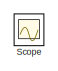
[diagram: root canvas - part 1/2, top left region]
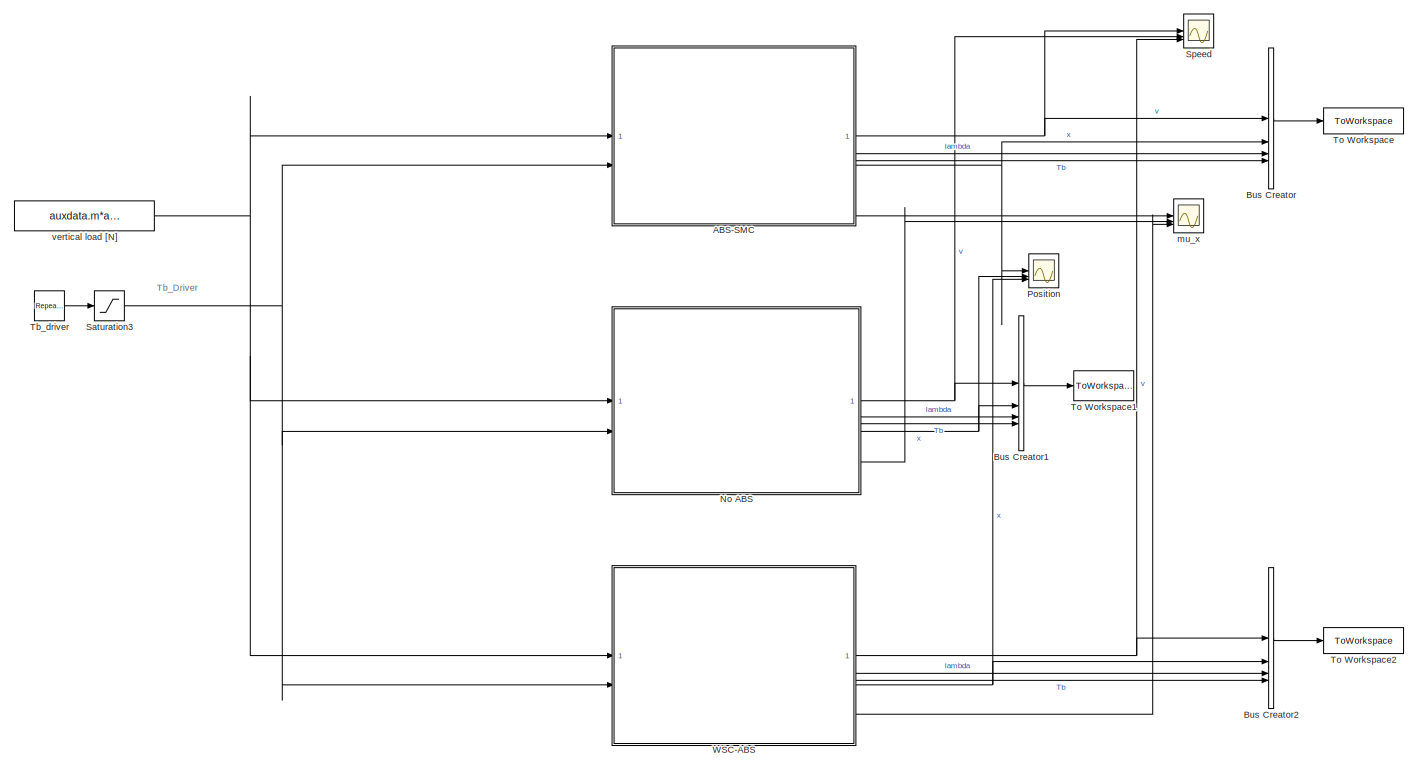
[diagram: root canvas - part 2/2, most of the canvas]
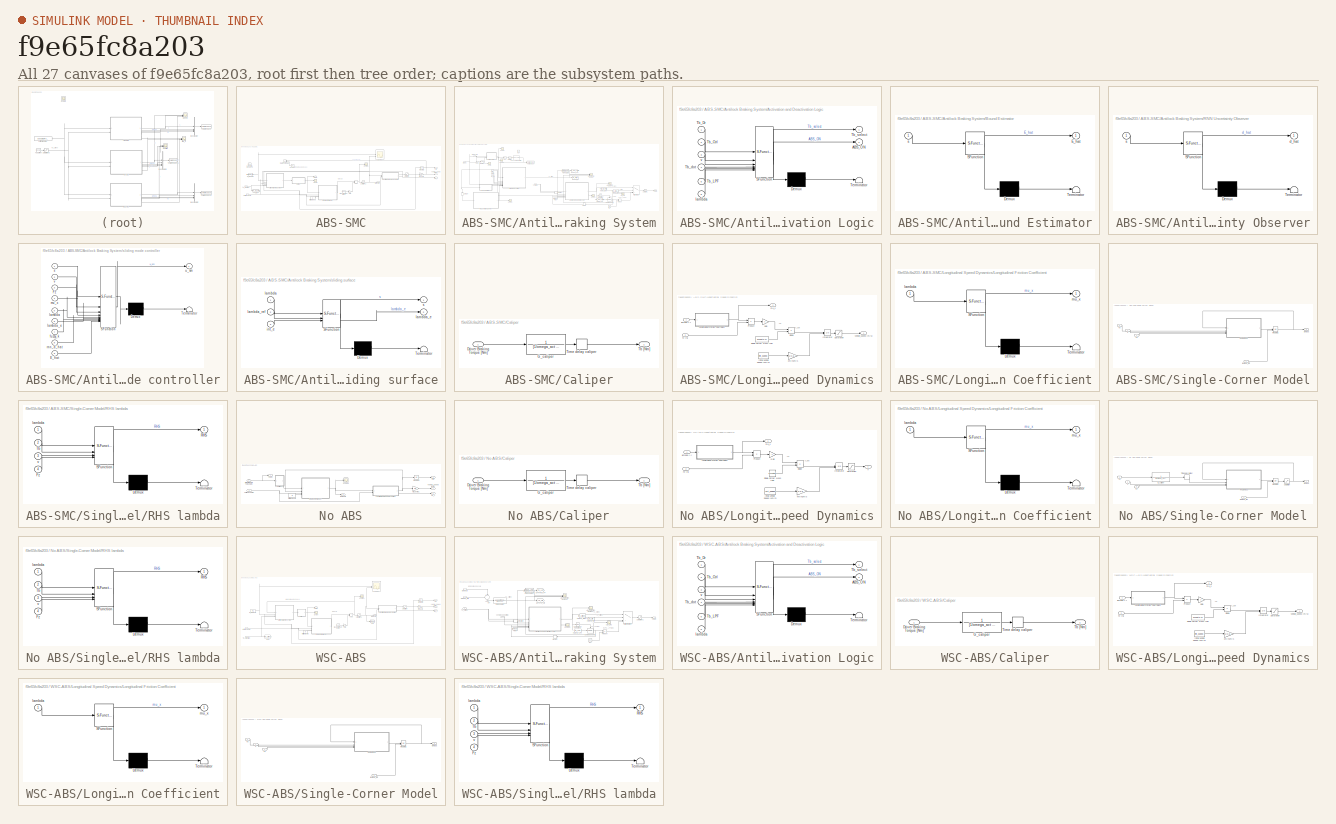
[diagram: thumbnail index - all 27 canvases of the model, root first then tree order]
MODEL slx_f9e65fc8a203
KIND model
CONFIG AbsTol = auto
CONFIG EnableMultiTasking = on
CONFIG FixedStep = auto
CONFIG MaxStep = 1e-3
CONFIG MinStep = auto
CONFIG RelTol = 1e-3
CONFIG SampleTimeConstraint = Unconstrained
CONFIG SolverName = VariableStepAuto
CONFIG StartTime = 0.0
CONFIG StopTime = tf
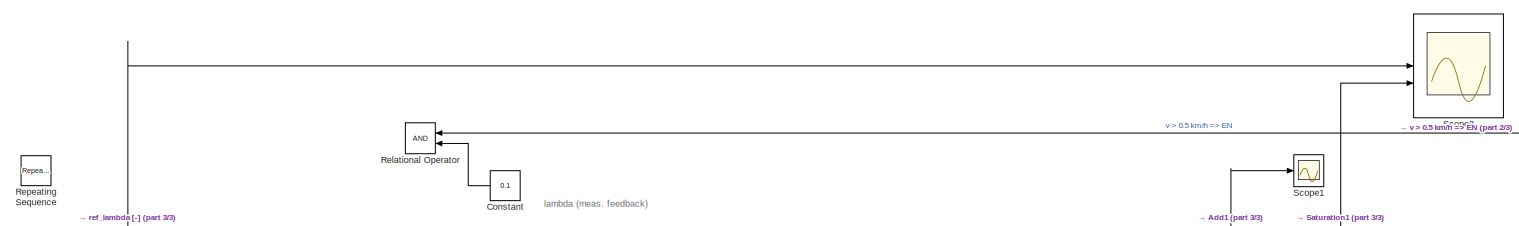
[diagram: ABS-SMC - part 1/3, top center region]
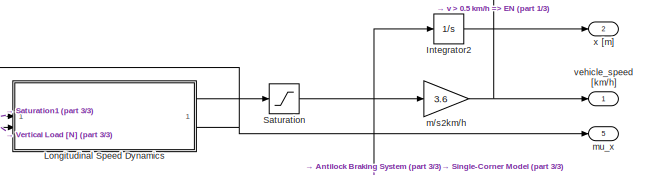
[diagram: ABS-SMC - part 2/3, middle right region]
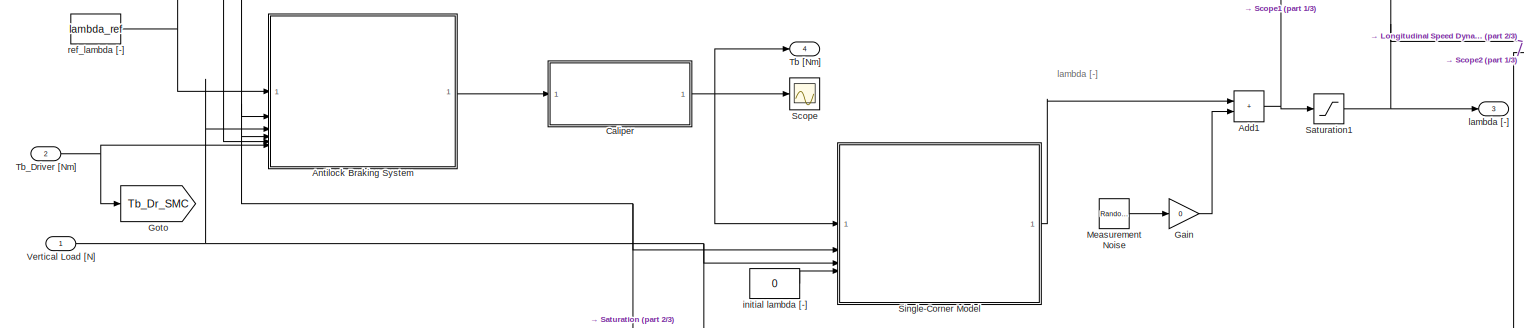
[diagram: ABS-SMC - part 3/3, central region]
BLOCK [SubSystem] ABS-SMC
BLOCK [Sum] ABS-SMC/Add1
  IconShape = rectangular
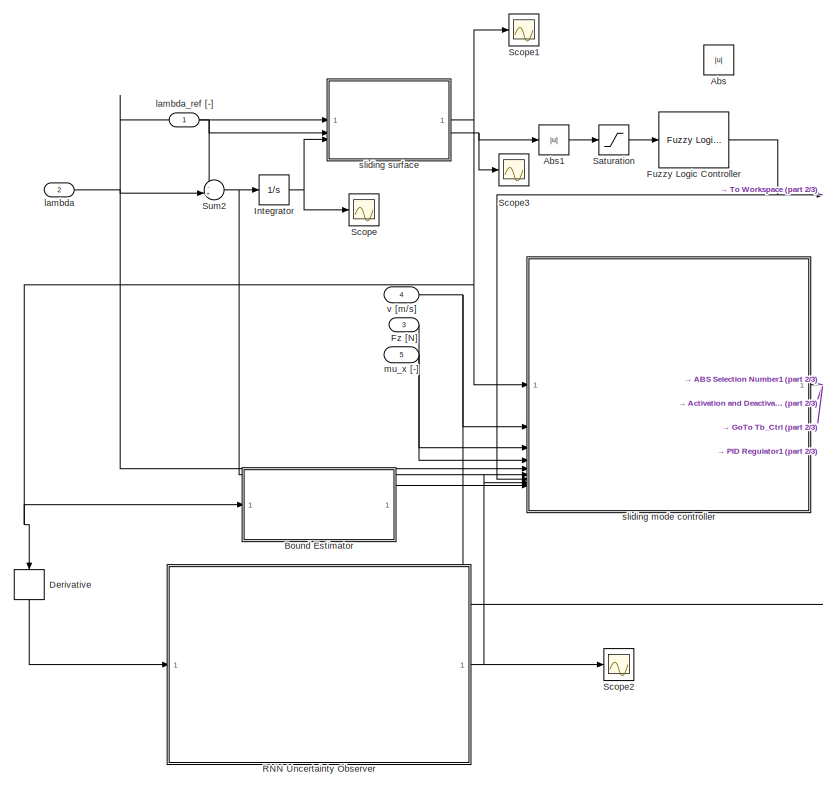
[diagram: ABS-SMC/Antilock Braking System - part 1/3, left side, full height]
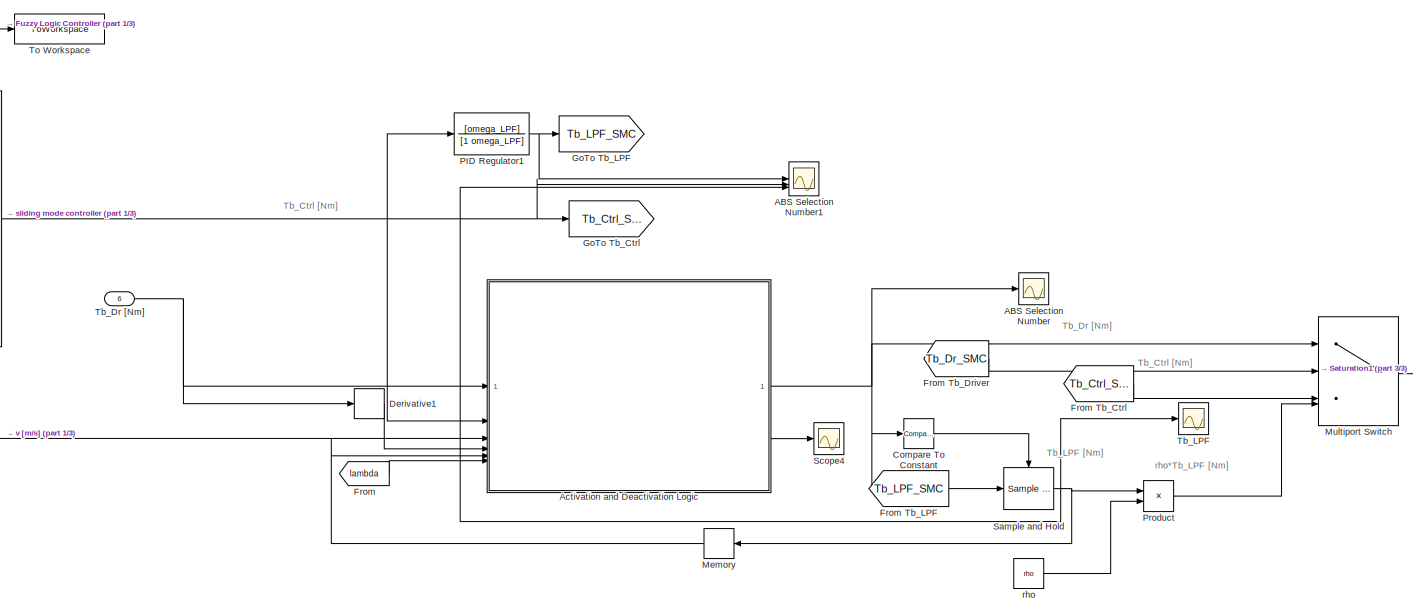
[diagram: ABS-SMC/Antilock Braking System - part 2/3, center side, full height]
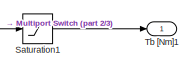
[diagram: ABS-SMC/Antilock Braking System - part 3/3, bottom right region]
BLOCK [SubSystem] ABS-SMC/Antilock Braking System
BLOCK [Scope] ABS-SMC/Antilock Braking System/ABS Selection Number
  Floating = off
  NumInputPorts = 1
  ScopeSpecificationString = Simulink.scopes.TimeScopeBlockCfg('CurrentConfiguration', extmgr.ConfigurationSet(extmgr.Configuration('Core','General UI',true),extmgr.Configuration('Core','Source UI',true),extmgr.Configuration('Sources','WiredSimulink',true,'DataLoggingVariableName','ScopeData1'),extmgr.Configuration('Visuals','Time Domain',true,'SerializedDisplays',{struct('MinYLimReal','0.875','MaxYLimReal','2.125','YLabelRea...<+1440ch>
BLOCK [Scope] ABS-SMC/Antilock Braking System/ABS Selection Number1
  Floating = off
  NumInputPorts = 3
  ScopeSpecificationString = Simulink.scopes.TimeScopeBlockCfg('CurrentConfiguration', extmgr.ConfigurationSet(extmgr.Configuration('Core','General UI',true),extmgr.Configuration('Core','Source UI',true),extmgr.Configuration('Sources','WiredSimulink',true,'DataLoggingVariableName','ScopeData2'),extmgr.Configuration('Visuals','Time Domain',true,'SerializedDisplays',{struct('MinYLimReal','-29869.15738','MaxYLimReal','12518.9920...<+1606ch>
BLOCK [Abs] ABS-SMC/Antilock Braking System/Abs
  Commented = on
  SaturateOnIntegerOverflow = off
BLOCK [Abs] ABS-SMC/Antilock Braking System/Abs1
  SaturateOnIntegerOverflow = off
BLOCK [SubSystem] ABS-SMC/Antilock Braking System/Activation and Deactivation Logic
  ErrorFcn = Stateflow.Translate.translate
  PermitHierarchicalResolution = ExplicitOnly
  SFBlockType = Chart
  TreatAsAtomicUnit = on
BLOCK [Demux] ABS-SMC/Antilock Braking System/Activation and Deactivation Logic/ Demux 
  Outputs = 1
BLOCK [S-Function] ABS-SMC/Antilock Braking System/Activation and Deactivation Logic/ SFunction 
  EnableBusSupport = on
  FunctionName = sf_sfun
  Parameters = Tb_dot_max,hv,lambda1_th,lambda2_th,rho_off,rho_on,v_on,v_stop
  PortCounts = [6 3]
  SFcnIsStateOwnerBlock = off
  SFunctionDeploymentMode = off
  Tag = Stateflow S-Function 12
BLOCK [Terminator] ABS-SMC/Antilock Braking System/Activation and Deactivation Logic/ Terminator 
BLOCK [Outport] ABS-SMC/Antilock Braking System/Activation and Deactivation Logic/ABS_ON
  Port = 2
BLOCK [Inport] ABS-SMC/Antilock Braking System/Activation and Deactivation Logic/Tb_Ctrl
  Port = 2
BLOCK [Inport] ABS-SMC/Antilock Braking System/Activation and Deactivation Logic/Tb_Dr
BLOCK [Inport] ABS-SMC/Antilock Braking System/Activation and Deactivation Logic/Tb_LPF
  Port = 5
BLOCK [Inport] ABS-SMC/Antilock Braking System/Activation and Deactivation Logic/Tb_dot
  Port = 4
BLOCK [Outport] ABS-SMC/Antilock Braking System/Activation and Deactivation Logic/Tb_select
BLOCK [Inport] ABS-SMC/Antilock Braking System/Activation and Deactivation Logic/lambda
  Port = 6
BLOCK [Inport] ABS-SMC/Antilock Braking System/Activation and Deactivation Logic/v
  Port = 3
BLOCK [SubSystem] ABS-SMC/Antilock Braking System/Bound Estimator
  ErrorFcn = Stateflow.Translate.translate
  PermitHierarchicalResolution = ExplicitOnly
  SFBlockType = MATLAB Function
  TreatAsAtomicUnit = on
BLOCK [Demux] ABS-SMC/Antilock Braking System/Bound Estimator/ Demux 
  Outputs = 1
BLOCK [S-Function] ABS-SMC/Antilock Braking System/Bound Estimator/ SFunction 
  EnableBusSupport = on
  FunctionName = sf_sfun
  Parameters = dt,rnn
  PortCounts = [1 2]
  SFcnIsStateOwnerBlock = off
  SFunctionDeploymentMode = off
  Tag = Stateflow S-Function 10
BLOCK [Terminator] ABS-SMC/Antilock Braking System/Bound Estimator/ Terminator 
BLOCK [Outport] ABS-SMC/Antilock Braking System/Bound Estimator/E_hat
BLOCK [Inport] ABS-SMC/Antilock Braking System/Bound Estimator/s
BLOCK [Reference] ABS-SMC/Antilock Braking System/Compare To Constant  REF=simulink/Logic and Bit
Operations/Compare
To Constant
  SourceBlock = simulink/Logic and Bit\nOperations/Compare\nTo Constant
  SourceType = Compare To Constant
BLOCK [Derivative] ABS-SMC/Antilock Braking System/Derivative
  NameLocation = left
BLOCK [Derivative] ABS-SMC/Antilock Braking System/Derivative1
BLOCK [From] ABS-SMC/Antilock Braking System/From
  GotoTag = lambda
  TagVisibility = global
BLOCK [From] ABS-SMC/Antilock Braking System/From Tb_Ctrl
  GotoTag = Tb_Ctrl_SMC
  TagVisibility = global
BLOCK [From] ABS-SMC/Antilock Braking System/From Tb_Driver
  GotoTag = Tb_Dr_SMC
  TagVisibility = global
BLOCK [From] ABS-SMC/Antilock Braking System/From Tb_LPF
  GotoTag = Tb_LPF_SMC
  TagVisibility = global
BLOCK [Reference] ABS-SMC/Antilock Braking System/Fuzzy Logic Controller  REF=fuzblock/Fuzzy Logic   (lib defined in mdl_858b3b3e7478)
Controller
  SourceBlock = fuzblock/Fuzzy Logic \nController
  SourceType = Fuzzy Inference System
BLOCK [Inport] ABS-SMC/Antilock Braking System/Fz [N]
  Port = 3
BLOCK [Goto] ABS-SMC/Antilock Braking System/GoTo Tb_Ctrl
  GotoTag = Tb_Ctrl_SMC
  TagVisibility = global
BLOCK [Goto] ABS-SMC/Antilock Braking System/GoTo Tb_LPF
  GotoTag = Tb_LPF_SMC
  TagVisibility = global
BLOCK [Integrator] ABS-SMC/Antilock Braking System/Integrator
BLOCK [Memory] ABS-SMC/Antilock Braking System/Memory
  NameLocation = top
BLOCK [MultiPortSwitch] ABS-SMC/Antilock Braking System/Multiport Switch
  InputSameDT = off
  SaturateOnIntegerOverflow = off
BLOCK [TransferFcn] ABS-SMC/Antilock Braking System/PID Regulator1
  Denominator = [1 omega_LPF]
  Numerator = [omega_LPF]
BLOCK [Product] ABS-SMC/Antilock Braking System/Product
BLOCK [SubSystem] ABS-SMC/Antilock Braking System/RNN Uncertainty Observer
  ErrorFcn = Stateflow.Translate.translate
  PermitHierarchicalResolution = ExplicitOnly
  SFBlockType = MATLAB Function
  TreatAsAtomicUnit = on
BLOCK [Demux] ABS-SMC/Antilock Braking System/RNN Uncertainty Observer/ Demux 
  Outputs = 1
BLOCK [S-Function] ABS-SMC/Antilock Braking System/RNN Uncertainty Observer/ SFunction 
  EnableBusSupport = on
  FunctionName = sf_sfun
  Parameters = dt,rnn
  PortCounts = [1 2]
  SFcnIsStateOwnerBlock = off
  SFunctionDeploymentMode = off
  Tag = Stateflow S-Function 11
BLOCK [Terminator] ABS-SMC/Antilock Braking System/RNN Uncertainty Observer/ Terminator 
BLOCK [Outport] ABS-SMC/Antilock Braking System/RNN Uncertainty Observer/d_hat
BLOCK [Inport] ABS-SMC/Antilock Braking System/RNN Uncertainty Observer/s
BLOCK [Reference] ABS-SMC/Antilock Braking System/Sample and Hold  REF=dspsigops/Sample
and Hold
  SourceBlock = dspsigops/Sample\nand Hold
  SourceType = Sample and Hold
BLOCK [Saturate] ABS-SMC/Antilock Braking System/Saturation
  LinearizeAsGain = off
  LowerLimit = 0
  UpperLimit = 1
  ZeroCross = off
BLOCK [Saturate] ABS-SMC/Antilock Braking System/Saturation1
  LowerLimit = 0
  UpperLimit = Tb_max
BLOCK [Scope] ABS-SMC/Antilock Braking System/Scope
  Floating = off
  NumInputPorts = 1
  ScopeSpecificationString = Simulink.scopes.TimeScopeBlockCfg('CurrentConfiguration', extmgr.ConfigurationSet(extmgr.Configuration('Core','General UI',true),extmgr.Configuration('Core','Source UI',true),extmgr.Configuration('Sources','WiredSimulink',true,'DataLoggingVariableName','ScopeData1'),extmgr.Configuration('Visuals','Time Domain',true,'SerializedDisplays',{struct('MinYLimReal','-0.14483','MaxYLimReal','0.99061','YLab...<+1504ch>
BLOCK [Scope] ABS-SMC/Antilock Braking System/Scope1
  Floating = off
  NumInputPorts = 1
  ScopeSpecificationString = Simulink.scopes.TimeScopeBlockCfg('CurrentConfiguration', extmgr.ConfigurationSet(extmgr.Configuration('Core','General UI',true),extmgr.Configuration('Core','Source UI',true),extmgr.Configuration('Sources','WiredSimulink',true,'DataLoggingVariableName','ScopeData1'),extmgr.Configuration('Visuals','Time Domain',true,'SerializedDisplays',{struct('MinYLimReal','-11.77973','MaxYLimReal','99.01326','YL...<+1564ch>
BLOCK [Scope] ABS-SMC/Antilock Braking System/Scope2
  Floating = off
  NumInputPorts = 1
  ScopeSpecificationString = Simulink.scopes.TimeScopeBlockCfg('CurrentConfiguration', extmgr.ConfigurationSet(extmgr.Configuration('Core','General UI',true),extmgr.Configuration('Core','Source UI',true),extmgr.Configuration('Sources','WiredSimulink',true,'DataLoggingVariableName','ScopeData1'),extmgr.Configuration('Visuals','Time Domain',true,'SerializedDisplays',{struct('MinYLimReal','-0.6695','MaxYLimReal','0.07812','YLabe...<+1514ch>
BLOCK [Scope] ABS-SMC/Antilock Braking System/Scope3
  Floating = off
  NumInputPorts = 1
  ScopeSpecificationString = Simulink.scopes.TimeScopeBlockCfg('CurrentConfiguration', extmgr.ConfigurationSet(extmgr.Configuration('Core','General UI',true),extmgr.Configuration('Core','Source UI',true),extmgr.Configuration('Sources','WiredSimulink',true,'DataLoggingVariableName','ScopeData1'),extmgr.Configuration('Visuals','Time Domain',true,'SerializedDisplays',{struct('MinYLimReal','-0.19448','MaxYLimReal','0.75034','YLab...<+1498ch>
BLOCK [Scope] ABS-SMC/Antilock Braking System/Scope4
  Floating = off
  NumInputPorts = 1
  ScopeSpecificationString = Simulink.scopes.TimeScopeBlockCfg('CurrentConfiguration', extmgr.ConfigurationSet(extmgr.Configuration('Core','General UI',true),extmgr.Configuration('Core','Source UI',true),extmgr.Configuration('Sources','WiredSimulink',true,'DataLoggingVariableName','ScopeData3'),extmgr.Configuration('Visuals','Time Domain',true,'SerializedDisplays',{struct('MinYLimReal','-0.125','MaxYLimReal','1.125','YLabelRe...<+1384ch>
BLOCK [Sum] ABS-SMC/Antilock Braking System/Sum2
  Inputs = -+|
BLOCK [Outport] ABS-SMC/Antilock Braking System/Tb [Nm]1
BLOCK [Inport] ABS-SMC/Antilock Braking System/Tb_Dr [Nm]
  Port = 6
BLOCK [Scope] ABS-SMC/Antilock Braking System/Tb_LPF
  Floating = off
  NumInputPorts = 1
  ScopeSpecificationString = Simulink.scopes.TimeScopeBlockCfg('CurrentConfiguration', extmgr.ConfigurationSet(extmgr.Configuration('Core','General UI',true),extmgr.Configuration('Core','Source UI',true),extmgr.Configuration('Sources','WiredSimulink',true,'DataLoggingVariableName','ScopeData4'),extmgr.Configuration('Visuals','Time Domain',true,'SerializedDisplays',{struct('MinYLimReal','-1.00000','MaxYLimReal','1.00000','YLab...<+1428ch>
BLOCK [ToWorkspace] ABS-SMC/Antilock Braking System/To Workspace
  FixptAsFi = on
  MaxDataPoints = inf
  SampleTime = -1
  SaveFormat = Timeseries
  VariableName = simout
BLOCK [Inport] ABS-SMC/Antilock Braking System/lambda
  Port = 2
BLOCK [Inport] ABS-SMC/Antilock Braking System/lambda_ref [-]
  NameLocation = top
BLOCK [Inport] ABS-SMC/Antilock Braking System/mu_x [-]
  Port = 5
BLOCK [Constant] ABS-SMC/Antilock Braking System/rho
  Value = rho
BLOCK [SubSystem] ABS-SMC/Antilock Braking System/sliding mode controller
  ErrorFcn = Stateflow.Translate.translate
  PermitHierarchicalResolution = ExplicitOnly
  SFBlockType = MATLAB Function
  TreatAsAtomicUnit = on
BLOCK [Demux] ABS-SMC/Antilock Braking System/sliding mode controller/ Demux 
  Outputs = 1
BLOCK [S-Function] ABS-SMC/Antilock Braking System/sliding mode controller/ SFunction 
  EnableBusSupport = on
  FunctionName = sf_sfun
  Parameters = auxdata,smc
  PortCounts = [9 2]
  SFcnIsStateOwnerBlock = off
  SFunctionDeploymentMode = off
  Tag = Stateflow S-Function 9
BLOCK [Terminator] ABS-SMC/Antilock Braking System/sliding mode controller/ Terminator 
BLOCK [Inport] ABS-SMC/Antilock Braking System/sliding mode controller/E_hat
  Port = 9
BLOCK [Inport] ABS-SMC/Antilock Braking System/sliding mode controller/Fz
  Port = 3
BLOCK [Inport] ABS-SMC/Antilock Braking System/sliding mode controller/fuzzy_k
  Port = 7
BLOCK [Inport] ABS-SMC/Antilock Braking System/sliding mode controller/lambda
  Port = 5
BLOCK [Inport] ABS-SMC/Antilock Braking System/sliding mode controller/lambda_e
  Port = 6
BLOCK [Inport] ABS-SMC/Antilock Braking System/sliding mode controller/mu_x
  Port = 4
BLOCK [Inport] ABS-SMC/Antilock Braking System/sliding mode controller/rnn_d_hat
  Port = 8
BLOCK [Inport] ABS-SMC/Antilock Braking System/sliding mode controller/s
BLOCK [Outport] ABS-SMC/Antilock Braking System/sliding mode controller/u_sm
BLOCK [Inport] ABS-SMC/Antilock Braking System/sliding mode controller/v
  Port = 2
BLOCK [SubSystem] ABS-SMC/Antilock Braking System/sliding surface
  ErrorFcn = Stateflow.Translate.translate
  PermitHierarchicalResolution = ExplicitOnly
  SFBlockType = MATLAB Function
  TreatAsAtomicUnit = on
BLOCK [Demux] ABS-SMC/Antilock Braking System/sliding surface/ Demux 
  Outputs = 1
BLOCK [S-Function] ABS-SMC/Antilock Braking System/sliding surface/ SFunction 
  EnableBusSupport = on
  FunctionName = sf_sfun
  Parameters = smc
  PortCounts = [3 3]
  SFcnIsStateOwnerBlock = off
  SFunctionDeploymentMode = off
  Tag = Stateflow S-Function 6
BLOCK [Terminator] ABS-SMC/Antilock Braking System/sliding surface/ Terminator 
BLOCK [Inport] ABS-SMC/Antilock Braking System/sliding surface/int_e
  Port = 3
BLOCK [Inport] ABS-SMC/Antilock Braking System/sliding surface/lambda
BLOCK [Outport] ABS-SMC/Antilock Braking System/sliding surface/lambda_e
  Port = 2
BLOCK [Inport] ABS-SMC/Antilock Braking System/sliding surface/lambda_ref
  Port = 2
BLOCK [Outport] ABS-SMC/Antilock Braking System/sliding surface/s
BLOCK [Inport] ABS-SMC/Antilock Braking System/v [m//s]
  NameLocation = top
  Port = 4
BLOCK [SubSystem] ABS-SMC/Caliper
BLOCK [Inport] ABS-SMC/Caliper/Driver Braking Torque [Nm]
BLOCK [TransferFcn] ABS-SMC/Caliper/G_caliper
  Denominator = [1/omega_act 1]
  Numerator = 1
BLOCK [Outport] ABS-SMC/Caliper/Tb [Nm]
BLOCK [TransportDelay] ABS-SMC/Caliper/Time delay caliper
  DelayTime = tau_delay
BLOCK [Constant] ABS-SMC/Constant
  Value = 0.1
BLOCK [Gain] ABS-SMC/Gain
  Gain = 0
BLOCK [Goto] ABS-SMC/Goto
  GotoTag = Tb_Dr_SMC
  TagVisibility = global
BLOCK [Integrator] ABS-SMC/Integrator2
BLOCK [SubSystem] ABS-SMC/Longitudinal Speed Dynamics
BLOCK [Product] ABS-SMC/Longitudinal Speed Dynamics/Divide
  Inputs = */
BLOCK [Inport] ABS-SMC/Longitudinal Speed Dynamics/Fz [N]
  Port = 2
BLOCK [Gain] ABS-SMC/Longitudinal Speed Dynamics/Gain
  Gain = -1
BLOCK [Constant] ABS-SMC/Longitudinal Speed Dynamics/Initial Vehicle Speed [km//h]
  Value = init_speed
BLOCK [Integrator] ABS-SMC/Longitudinal Speed Dynamics/Integrator
  InitialConditionSource = external
BLOCK [SubSystem] ABS-SMC/Longitudinal Speed Dynamics/Longitudinal Friction Coefficient
  ErrorFcn = Stateflow.Translate.translate
  PermitHierarchicalResolution = ExplicitOnly
  SFBlockType = MATLAB Function
  TreatAsAtomicUnit = on
BLOCK [Demux] ABS-SMC/Longitudinal Speed Dynamics/Longitudinal Friction Coefficient/ Demux 
  Outputs = 1
BLOCK [S-Function] ABS-SMC/Longitudinal Speed Dynamics/Longitudinal Friction Coefficient/ SFunction 
  EnableBusSupport = on
  FunctionName = sf_sfun
  Parameters = auxdata
  PortCounts = [1 2]
  SFcnIsStateOwnerBlock = off
  SFunctionDeploymentMode = off
  Tag = Stateflow S-Function 2
BLOCK [Terminator] ABS-SMC/Longitudinal Speed Dynamics/Longitudinal Friction Coefficient/ Terminator 
BLOCK [Inport] ABS-SMC/Longitudinal Speed Dynamics/Longitudinal Friction Coefficient/lambda
BLOCK [Outport] ABS-SMC/Longitudinal Speed Dynamics/Longitudinal Friction Coefficient/mu_x
BLOCK [Product] ABS-SMC/Longitudinal Speed Dynamics/Product
BLOCK [Saturate] ABS-SMC/Longitudinal Speed Dynamics/Saturation
  LowerLimit = 0
  UpperLimit = 100
BLOCK [Constant] ABS-SMC/Longitudinal Speed Dynamics/Single-Corner Mass [Kg]
  Value = auxdata.m
BLOCK [Gain] ABS-SMC/Longitudinal Speed Dynamics/km//h2m//s
  Gain = 1/3.6
BLOCK [Inport] ABS-SMC/Longitudinal Speed Dynamics/lambda [-]
BLOCK [Outport] ABS-SMC/Longitudinal Speed Dynamics/mu_x
  Port = 2
BLOCK [Outport] ABS-SMC/Longitudinal Speed Dynamics/vehicle_speed [m//s]
BLOCK [RandomNumber] ABS-SMC/Measurement Noise
  SampleTime = 0.001
  Variance = 2e-5
BLOCK [RelationalOperator] ABS-SMC/Relational Operator
  Commented = on
  InputSameDT = off
  OutDataTypeStr = boolean
  RndMeth = Simplest
BLOCK [Reference] ABS-SMC/Repeating Sequence  REF=simulink/Sources/Repeating
Sequence
  Commented = on
  SourceBlock = simulink/Sources/Repeating\nSequence
  SourceType = Repeating table
BLOCK [Saturate] ABS-SMC/Saturation
  LowerLimit = 1e-3
  UpperLimit = 100
BLOCK [Saturate] ABS-SMC/Saturation1
  LowerLimit = 0
  UpperLimit = 1
BLOCK [Scope] ABS-SMC/Scope
  Floating = off
  NumInputPorts = 1
  ScopeSpecificationString = Simulink.scopes.TimeScopeBlockCfg('CurrentConfiguration', extmgr.ConfigurationSet(extmgr.Configuration('Core','General UI',true),extmgr.Configuration('Core','Source UI',true),extmgr.Configuration('Sources','WiredSimulink',true,'DataLoggingVariableName','ScopeData1'),extmgr.Configuration('Visuals','Time Domain',true,'SerializedDisplays',{struct('MinYLimReal','-181.14068','MaxYLimReal','1630.2661','...<+1565ch>
BLOCK [Scope] ABS-SMC/Scope1
  Floating = off
  NumInputPorts = 1
  ScopeSpecificationString = Simulink.scopes.TimeScopeBlockCfg('CurrentConfiguration', extmgr.ConfigurationSet(extmgr.Configuration('Core','General UI',true),extmgr.Configuration('Core','Source UI',true),extmgr.Configuration('Sources','WiredSimulink',true,'DataLoggingVariableName','ScopeData1'),extmgr.Configuration('Visuals','Time Domain',true,'SerializedDisplays',{struct('MinYLimReal','-0.12494','MaxYLimReal','1.12447','YLab...<+1522ch>
BLOCK [Scope] ABS-SMC/Scope2
  Floating = off
  NumInputPorts = 2
  ScopeSpecificationString = Simulink.scopes.TimeScopeBlockCfg('CurrentConfiguration', extmgr.ConfigurationSet(extmgr.Configuration('Core','General UI',true),extmgr.Configuration('Core','Source UI',true),extmgr.Configuration('Sources','WiredSimulink',true,'DataLoggingVariableName','ScopeData2'),extmgr.Configuration('Visuals','Time Domain',true,'SerializedDisplays',{struct('MinYLimReal','-0.11932','MaxYLimReal','1.07386','YLab...<+1549ch>
BLOCK [SubSystem] ABS-SMC/Single-Corner Model
  ShowPortLabels = none
BLOCK [Inport] ABS-SMC/Single-Corner Model/Fz
  Port = 3
BLOCK [Integrator] ABS-SMC/Single-Corner Model/Integrator1
  InitialConditionSource = external
  LimitOutput = on
  LowerSaturationLimit = 0
  UpperSaturationLimit = 1
BLOCK [SubSystem] ABS-SMC/Single-Corner Model/RHS lambda
  ErrorFcn = Stateflow.Translate.translate
  PermitHierarchicalResolution = ExplicitOnly
  SFBlockType = MATLAB Function
  TreatAsAtomicUnit = on
BLOCK [Demux] ABS-SMC/Single-Corner Model/RHS lambda/ Demux 
  Outputs = 1
BLOCK [S-Function] ABS-SMC/Single-Corner Model/RHS lambda/ SFunction 
  EnableBusSupport = on
  FunctionName = sf_sfun
  Parameters = auxdata
  PortCounts = [4 2]
  SFcnIsStateOwnerBlock = off
  SFunctionDeploymentMode = off
  Tag = Stateflow S-Function 7
BLOCK [Terminator] ABS-SMC/Single-Corner Model/RHS lambda/ Terminator 
BLOCK [Inport] ABS-SMC/Single-Corner Model/RHS lambda/Fz
  Port = 4
BLOCK [Outport] ABS-SMC/Single-Corner Model/RHS lambda/RHS
BLOCK [Inport] ABS-SMC/Single-Corner Model/RHS lambda/Tb
  Port = 2
BLOCK [Inport] ABS-SMC/Single-Corner Model/RHS lambda/lambda
BLOCK [Inport] ABS-SMC/Single-Corner Model/RHS lambda/v
  Port = 3
BLOCK [Inport] ABS-SMC/Single-Corner Model/Tb
BLOCK [Outport] ABS-SMC/Single-Corner Model/lambda
BLOCK [Inport] ABS-SMC/Single-Corner Model/lambda_init
  Port = 4
BLOCK [Inport] ABS-SMC/Single-Corner Model/v
  Port = 2
BLOCK [Outport] ABS-SMC/Tb [Nm]
  Port = 4
BLOCK [Inport] ABS-SMC/Tb_Driver [Nm]
  Port = 2
BLOCK [Inport] ABS-SMC/Vertical Load [N]
BLOCK [Constant] ABS-SMC/initial lambda [-]
  Value = 0
BLOCK [Outport] ABS-SMC/lambda [-]
  Port = 3
BLOCK [Gain] ABS-SMC/m//s2km//h
  Gain = 3.6
BLOCK [Outport] ABS-SMC/mu_x
  Port = 5
BLOCK [Constant] ABS-SMC/ref_lambda [-]
  Value = lambda_ref
BLOCK [Outport] ABS-SMC/vehicle_speed [km//h]
BLOCK [Outport] ABS-SMC/x [m]
  Port = 2
BLOCK [BusCreator] Bus Creator
  DisplayOption = bar
  InheritFromInputs = on
  Inputs = 4
BLOCK [BusCreator] Bus Creator1
  DisplayOption = bar
  InheritFromInputs = on
  Inputs = 4
BLOCK [BusCreator] Bus Creator2
  DisplayOption = bar
  InheritFromInputs = on
  Inputs = 4
BLOCK [SubSystem] No ABS
BLOCK [Outport] No ABS/ mu_x
  Port = 5
BLOCK [Outport] No ABS/ vehicle_speed [km//h]
BLOCK [SubSystem] No ABS/Caliper
BLOCK [Inport] No ABS/Caliper/Driver Braking Torque [Nm]
BLOCK [TransferFcn] No ABS/Caliper/G_caliper
  Denominator = [1/omega_act 1]
  Numerator = 1
BLOCK [Outport] No ABS/Caliper/Tb [Nm]
BLOCK [TransportDelay] No ABS/Caliper/Time delay caliper
  DelayTime = tau_delay
BLOCK [Inport] No ABS/Driver Braking Torque [Nm]
  Port = 2
BLOCK [Integrator] No ABS/Integrator3
BLOCK [SubSystem] No ABS/Longitudinal Speed Dynamics
BLOCK [Product] No ABS/Longitudinal Speed Dynamics/Divide
  Inputs = */
BLOCK [Inport] No ABS/Longitudinal Speed Dynamics/Fz [N]
  Port = 2
BLOCK [Gain] No ABS/Longitudinal Speed Dynamics/Gain
  Gain = -1
BLOCK [Constant] No ABS/Longitudinal Speed Dynamics/Initial Vehicle Speed [km//h]
  Value = init_speed
BLOCK [Integrator] No ABS/Longitudinal Speed Dynamics/Integrator
  InitialConditionSource = external
BLOCK [SubSystem] No ABS/Longitudinal Speed Dynamics/Longitudinal Friction Coefficient
  ErrorFcn = Stateflow.Translate.translate
  PermitHierarchicalResolution = ExplicitOnly
  SFBlockType = MATLAB Function
  TreatAsAtomicUnit = on
BLOCK [Demux] No ABS/Longitudinal Speed Dynamics/Longitudinal Friction Coefficient/ Demux 
  Outputs = 1
BLOCK [S-Function] No ABS/Longitudinal Speed Dynamics/Longitudinal Friction Coefficient/ SFunction 
  EnableBusSupport = on
  FunctionName = sf_sfun
  Parameters = auxdata
  PortCounts = [1 2]
  SFcnIsStateOwnerBlock = off
  SFunctionDeploymentMode = off
  Tag = Stateflow S-Function 5
BLOCK [Terminator] No ABS/Longitudinal Speed Dynamics/Longitudinal Friction Coefficient/ Terminator 
BLOCK [Inport] No ABS/Longitudinal Speed Dynamics/Longitudinal Friction Coefficient/lambda
BLOCK [Outport] No ABS/Longitudinal Speed Dynamics/Longitudinal Friction Coefficient/mu_x
BLOCK [Product] No ABS/Longitudinal Speed Dynamics/Product
BLOCK [Saturate] No ABS/Longitudinal Speed Dynamics/Saturation
  LowerLimit = 1e-3
  UpperLimit = 100
BLOCK [Constant] No ABS/Longitudinal Speed Dynamics/Single-Corner Mass [Kg]
  Value = auxdata.m
BLOCK [Gain] No ABS/Longitudinal Speed Dynamics/km//h2m//s
  Gain = 1/3.6
BLOCK [Inport] No ABS/Longitudinal Speed Dynamics/lambda [-]
BLOCK [Outport] No ABS/Longitudinal Speed Dynamics/mu_x
  Port = 2
BLOCK [Outport] No ABS/Longitudinal Speed Dynamics/v
BLOCK [Scope] No ABS/Scope3
  Floating = off
  NumInputPorts = 1
  ScopeSpecificationString = Simulink.scopes.TimeScopeBlockCfg('CurrentConfiguration', extmgr.ConfigurationSet(extmgr.Configuration('Core','General UI',true),extmgr.Configuration('Core','Source UI',true),extmgr.Configuration('Sources','WiredSimulink',true,'DataLoggingVariableName','ScopeData5'),extmgr.Configuration('Visuals','Time Domain',true,'SerializedDisplays',{struct('MinYLimReal','-0.12375','MaxYLimReal','1.11375','YLab...<+1378ch>
BLOCK [SubSystem] No ABS/Single-Corner Model
  ShowPortLabels = none
BLOCK [Inport] No ABS/Single-Corner Model/Fz
  Port = 3
BLOCK [TransferFcn] No ABS/Single-Corner Model/G_caliper
  Denominator = [1/omega_act 1]
  Numerator = 1
BLOCK [Integrator] No ABS/Single-Corner Model/Integrator1
  InitialConditionSource = external
BLOCK [SubSystem] No ABS/Single-Corner Model/RHS lambda
  ErrorFcn = Stateflow.Translate.translate
  PermitHierarchicalResolution = ExplicitOnly
  SFBlockType = MATLAB Function
  TreatAsAtomicUnit = on
BLOCK [Demux] No ABS/Single-Corner Model/RHS lambda/ Demux 
  Outputs = 1
BLOCK [S-Function] No ABS/Single-Corner Model/RHS lambda/ SFunction 
  EnableBusSupport = on
  FunctionName = sf_sfun
  Parameters = auxdata
  PortCounts = [4 2]
  SFcnIsStateOwnerBlock = off
  SFunctionDeploymentMode = off
  Tag = Stateflow S-Function 3
BLOCK [Terminator] No ABS/Single-Corner Model/RHS lambda/ Terminator 
BLOCK [Inport] No ABS/Single-Corner Model/RHS lambda/Fz
  Port = 4
BLOCK [Outport] No ABS/Single-Corner Model/RHS lambda/RHS
BLOCK [Inport] No ABS/Single-Corner Model/RHS lambda/Tb
  Port = 2
BLOCK [Inport] No ABS/Single-Corner Model/RHS lambda/lambda
BLOCK [Inport] No ABS/Single-Corner Model/RHS lambda/v
  Port = 3
BLOCK [Saturate] No ABS/Single-Corner Model/Saturation
  LowerLimit = 0
  UpperLimit = 0.99
BLOCK [Inport] No ABS/Single-Corner Model/Tb
BLOCK [TransportDelay] No ABS/Single-Corner Model/Time delay caliper
  DelayTime = tau_delay
BLOCK [Outport] No ABS/Single-Corner Model/lambda
BLOCK [Inport] No ABS/Single-Corner Model/lambda_init
  Port = 4
BLOCK [Inport] No ABS/Single-Corner Model/v
  Port = 2
BLOCK [Outport] No ABS/Tb [Nm]
  Port = 4
BLOCK [Inport] No ABS/Vertical Load [N]
  NameLocation = top
BLOCK [Constant] No ABS/initial lambda [-]
  Value = 0
BLOCK [Outport] No ABS/lambda [-]
  Port = 3
BLOCK [Gain] No ABS/m//s2km//h1
  Gain = 3.6
BLOCK [Outport] No ABS/x [m]
  Port = 2
BLOCK [Scope] Position
  Floating = off
  NumInputPorts = 3
  ScopeSpecificationString = Simulink.scopes.TimeScopeBlockCfg('CurrentConfiguration', extmgr.ConfigurationSet(extmgr.Configuration('Core','General UI',true),extmgr.Configuration('Core','Source UI',true),extmgr.Configuration('Sources','WiredSimulink',true,'DataLoggingVariableName','ScopeData6'),extmgr.Configuration('Visuals','Time Domain',true,'SerializedDisplays',{struct('MinYLimReal','-7.86203','MaxYLimReal','70.75829','YLa...<+1443ch>
BLOCK [Saturate] Saturation3
  LowerLimit = 0
  UpperLimit = Tb_max
BLOCK [Scope] Scope
  Floating = off
  IOType = viewer
  NumInputPorts = 1
  ScopeSpecificationString = Simulink.scopes.TimeScopeBlockCfg('CurrentConfiguration', extmgr.ConfigurationSet(extmgr.Configuration('Core','General UI',true),extmgr.Configuration('Core','Source UI',true),extmgr.Configuration('Sources','WiredSimulink',true),extmgr.Configuration('Visuals','Time Domain',true,'SerializedDisplays',{struct('MinYLimReal','-0.01608','MaxYLimReal','0.14469','YLabelReal','','MinYLimMag','0.00000','MaxY...<+1435ch>
BLOCK [Scope] Speed
  Floating = off
  NumInputPorts = 3
  ScopeSpecificationString = Simulink.scopes.TimeScopeBlockCfg('CurrentConfiguration', extmgr.ConfigurationSet(extmgr.Configuration('Core','General UI',true),extmgr.Configuration('Core','Source UI',true),extmgr.Configuration('Sources','WiredSimulink',true,'DataLoggingVariableName','ScopeData3'),extmgr.Configuration('Visuals','Time Domain',true,'SerializedDisplays',{struct('MinYLimReal','-12.49595','MaxYLimReal','112.49955','Y...<+3028ch>
BLOCK [Reference] Tb_driver  REF=simulink/Sources/Repeating
Sequence
  SourceBlock = simulink/Sources/Repeating\nSequence
  SourceType = Repeating table
BLOCK [ToWorkspace] To Workspace
  FixptAsFi = on
  MaxDataPoints = inf
  SampleTime = -1
  SaveFormat = Timeseries
  VariableName = SMC_ABS
BLOCK [ToWorkspace] To Workspace1
  FixptAsFi = on
  MaxDataPoints = inf
  SampleTime = -1
  SaveFormat = Timeseries
  VariableName = noABS
BLOCK [ToWorkspace] To Workspace2
  FixptAsFi = on
  MaxDataPoints = inf
  SampleTime = -1
  SaveFormat = Timeseries
  VariableName = WSC_ABS
BLOCK [SubSystem] WSC-ABS
BLOCK [Sum] WSC-ABS/Add1
  IconShape = rectangular
BLOCK [SubSystem] WSC-ABS/Antilock Braking System
BLOCK [Scope] WSC-ABS/Antilock Braking System/ABS Selection Number
  Floating = off
  NumInputPorts = 1
  ScopeSpecificationString = Simulink.scopes.TimeScopeBlockCfg('CurrentConfiguration', extmgr.ConfigurationSet(extmgr.Configuration('Core','General UI',true),extmgr.Configuration('Core','Source UI',true),extmgr.Configuration('Sources','WiredSimulink',true,'DataLoggingVariableName','ScopeData9'),extmgr.Configuration('Visuals','Time Domain',true,'SerializedDisplays',{struct('MinYLimReal','0.875','MaxYLimReal','2.125','YLabelRea...<+1498ch>
BLOCK [Scope] WSC-ABS/Antilock Braking System/ABS Selection Number1
  Floating = off
  NumInputPorts = 3
  ScopeSpecificationString = Simulink.scopes.TimeScopeBlockCfg('CurrentConfiguration', extmgr.ConfigurationSet(extmgr.Configuration('Core','General UI',true),extmgr.Configuration('Core','Source UI',true),extmgr.Configuration('Sources','WiredSimulink',true,'DataLoggingVariableName','ScopeData2'),extmgr.Configuration('Visuals','Time Domain',true,'SerializedDisplays',{struct('MinYLimReal','-29869.15738','MaxYLimReal','12518.9920...<+1512ch>
BLOCK [SubSystem] WSC-ABS/Antilock Braking System/Activation and Deactivation Logic
  ErrorFcn = Stateflow.Translate.translate
  PermitHierarchicalResolution = ExplicitOnly
  SFBlockType = Chart
  TreatAsAtomicUnit = on
BLOCK [Demux] WSC-ABS/Antilock Braking System/Activation and Deactivation Logic/ Demux 
  Outputs = 1
BLOCK [S-Function] WSC-ABS/Antilock Braking System/Activation and Deactivation Logic/ SFunction 
  EnableBusSupport = on
  FunctionName = sf_sfun
  Parameters = Tb_dot_max,hv,lambda1_th,lambda2_th,rho_off,rho_on,v_on,v_stop
  PortCounts = [6 3]
  SFcnIsStateOwnerBlock = off
  SFunctionDeploymentMode = off
  Tag = Stateflow S-Function 1
BLOCK [Terminator] WSC-ABS/Antilock Braking System/Activation and Deactivation Logic/ Terminator 
BLOCK [Outport] WSC-ABS/Antilock Braking System/Activation and Deactivation Logic/ABS_ON
  Port = 2
BLOCK [Inport] WSC-ABS/Antilock Braking System/Activation and Deactivation Logic/Tb_Ctrl
  Port = 2
BLOCK [Inport] WSC-ABS/Antilock Braking System/Activation and Deactivation Logic/Tb_Dr
BLOCK [Inport] WSC-ABS/Antilock Braking System/Activation and Deactivation Logic/Tb_LPF
  Port = 5
BLOCK [Inport] WSC-ABS/Antilock Braking System/Activation and Deactivation Logic/Tb_dot
  Port = 4
BLOCK [Outport] WSC-ABS/Antilock Braking System/Activation and Deactivation Logic/Tb_select
BLOCK [Inport] WSC-ABS/Antilock Braking System/Activation and Deactivation Logic/lambda
  Port = 6
BLOCK [Inport] WSC-ABS/Antilock Braking System/Activation and Deactivation Logic/v
  Port = 3
BLOCK [Sum] WSC-ABS/Antilock Braking System/Add2
  Inputs = +-|
  NameLocation = right
BLOCK [Reference] WSC-ABS/Antilock Braking System/Compare To Constant  REF=simulink/Logic and Bit
Operations/Compare
To Constant
  SourceBlock = simulink/Logic and Bit\nOperations/Compare\nTo Constant
  SourceType = Compare To Constant
BLOCK [Derivative] WSC-ABS/Antilock Braking System/Derivative
BLOCK [From] WSC-ABS/Antilock Braking System/From
  GotoTag = lambda
  TagVisibility = global
BLOCK [From] WSC-ABS/Antilock Braking System/From Tb_Ctrl
  GotoTag = Tb_Ctrl
  TagVisibility = global
BLOCK [From] WSC-ABS/Antilock Braking System/From Tb_Driver
  GotoTag = Tb_Driver
  TagVisibility = global
BLOCK [From] WSC-ABS/Antilock Braking System/From Tb_LPF
  GotoTag = Tb_LPF
  TagVisibility = global
BLOCK [Goto] WSC-ABS/Antilock Braking System/GoTo Tb_Ctrl
  GotoTag = Tb_Ctrl
  TagVisibility = global
BLOCK [Goto] WSC-ABS/Antilock Braking System/GoTo Tb_LPF
  GotoTag = Tb_LPF
  TagVisibility = global
BLOCK [Memory] WSC-ABS/Antilock Braking System/Memory
  NameLocation = top
BLOCK [MultiPortSwitch] WSC-ABS/Antilock Braking System/Multiport Switch
  InputSameDT = off
  SaturateOnIntegerOverflow = off
BLOCK [TransferFcn] WSC-ABS/Antilock Braking System/PID Regulator
  Denominator = [1/500 1 0]
  Numerator = 12000*[1/400 1/10 1]
BLOCK [TransferFcn] WSC-ABS/Antilock Braking System/PID Regulator1
  Denominator = [1 omega_LPF]
  Numerator = [omega_LPF]
BLOCK [Product] WSC-ABS/Antilock Braking System/Product
BLOCK [Reference] WSC-ABS/Antilock Braking System/Sample and Hold  REF=dspsigops/Sample
and Hold
  SourceBlock = dspsigops/Sample\nand Hold
  SourceType = Sample and Hold
BLOCK [Saturate] WSC-ABS/Antilock Braking System/Saturation1
  LowerLimit = 0
  UpperLimit = Tb_max
BLOCK [Scope] WSC-ABS/Antilock Braking System/Scope2
  Floating = off
  NumInputPorts = 1
  ScopeSpecificationString = Simulink.scopes.TimeScopeBlockCfg('CurrentConfiguration', extmgr.ConfigurationSet(extmgr.Configuration('Core','General UI',true),extmgr.Configuration('Core','Source UI',true),extmgr.Configuration('Sources','WiredSimulink',true,'DataLoggingVariableName','ScopeData7'),extmgr.Configuration('Visuals','Time Domain',true,'SerializedDisplays',{struct('MinYLimReal','-0.125','MaxYLimReal','1.125','YLabelRe...<+1501ch>
BLOCK [Outport] WSC-ABS/Antilock Braking System/Tb [Nm]
BLOCK [Inport] WSC-ABS/Antilock Braking System/Tb_Dr [Nm]
  NameLocation = top
  Port = 4
BLOCK [Scope] WSC-ABS/Antilock Braking System/Tb_LPF
  Floating = off
  NumInputPorts = 1
  ScopeSpecificationString = Simulink.scopes.TimeScopeBlockCfg('CurrentConfiguration', extmgr.ConfigurationSet(extmgr.Configuration('Core','General UI',true),extmgr.Configuration('Core','Source UI',true),extmgr.Configuration('Sources','WiredSimulink',true,'DataLoggingVariableName','ScopeData3'),extmgr.Configuration('Visuals','Time Domain',true,'SerializedDisplays',{struct('MinYLimReal','-1.00000','MaxYLimReal','1.00000','YLab...<+1428ch>
BLOCK [Inport] WSC-ABS/Antilock Braking System/lambda [-]
  NameLocation = top
BLOCK [Inport] WSC-ABS/Antilock Braking System/lambda_ref [-]
  Port = 2
BLOCK [Constant] WSC-ABS/Antilock Braking System/rho
  Value = rho
BLOCK [Inport] WSC-ABS/Antilock Braking System/vehicle speed [m//s]
  NameLocation = top
  Port = 3
BLOCK [SubSystem] WSC-ABS/Caliper
BLOCK [Inport] WSC-ABS/Caliper/Driver Braking Torque [Nm]
BLOCK [TransferFcn] WSC-ABS/Caliper/G_caliper
  Denominator = [1/omega_act 1]
  Numerator = 1
BLOCK [Outport] WSC-ABS/Caliper/Tb [Nm]
BLOCK [TransportDelay] WSC-ABS/Caliper/Time delay caliper
  DelayTime = tau_delay
BLOCK [Gain] WSC-ABS/Gain
  Gain = 0
BLOCK [Goto] WSC-ABS/Goto
  GotoTag = lambda
  TagVisibility = global
BLOCK [Goto] WSC-ABS/Goto1
  GotoTag = Tb_Driver
  TagVisibility = global
BLOCK [Integrator] WSC-ABS/Integrator2
BLOCK [SubSystem] WSC-ABS/Longitudinal Speed Dynamics
BLOCK [Product] WSC-ABS/Longitudinal Speed Dynamics/Divide
  Inputs = */
BLOCK [Inport] WSC-ABS/Longitudinal Speed Dynamics/Fz [N]
  Port = 2
BLOCK [Gain] WSC-ABS/Longitudinal Speed Dynamics/Gain
  Gain = -1
BLOCK [Constant] WSC-ABS/Longitudinal Speed Dynamics/Initial Vehicle Speed [km//h]
  Value = init_speed
BLOCK [Integrator] WSC-ABS/Longitudinal Speed Dynamics/Integrator
  InitialConditionSource = external
BLOCK [SubSystem] WSC-ABS/Longitudinal Speed Dynamics/Longitudinal Friction Coefficient
  ErrorFcn = Stateflow.Translate.translate
  PermitHierarchicalResolution = ExplicitOnly
  SFBlockType = MATLAB Function
  TreatAsAtomicUnit = on
BLOCK [Demux] WSC-ABS/Longitudinal Speed Dynamics/Longitudinal Friction Coefficient/ Demux 
  Outputs = 1
BLOCK [S-Function] WSC-ABS/Longitudinal Speed Dynamics/Longitudinal Friction Coefficient/ SFunction 
  EnableBusSupport = on
  FunctionName = sf_sfun
  Parameters = auxdata
  PortCounts = [1 2]
  SFcnIsStateOwnerBlock = off
  SFunctionDeploymentMode = off
  Tag = Stateflow S-Function 4
BLOCK [Terminator] WSC-ABS/Longitudinal Speed Dynamics/Longitudinal Friction Coefficient/ Terminator 
BLOCK [Inport] WSC-ABS/Longitudinal Speed Dynamics/Longitudinal Friction Coefficient/lambda
BLOCK [Outport] WSC-ABS/Longitudinal Speed Dynamics/Longitudinal Friction Coefficient/mu_x
BLOCK [Product] WSC-ABS/Longitudinal Speed Dynamics/Product
BLOCK [Saturate] WSC-ABS/Longitudinal Speed Dynamics/Saturation
  LowerLimit = 0
  UpperLimit = 100
BLOCK [Constant] WSC-ABS/Longitudinal Speed Dynamics/Single-Corner Mass [Kg]
  Value = auxdata.m
BLOCK [Gain] WSC-ABS/Longitudinal Speed Dynamics/km//h2m//s
  Gain = 1/3.6
BLOCK [Inport] WSC-ABS/Longitudinal Speed Dynamics/lambda [-]
BLOCK [Outport] WSC-ABS/Longitudinal Speed Dynamics/mu_x
  Port = 2
BLOCK [Outport] WSC-ABS/Longitudinal Speed Dynamics/vehicle_speed [m//s]
BLOCK [RandomNumber] WSC-ABS/Measurement Noise
  SampleTime = 0.001
  Variance = 2e-5
BLOCK [Saturate] WSC-ABS/Saturation
  LowerLimit = 1e-3
  UpperLimit = 100
BLOCK [Saturate] WSC-ABS/Saturation1
  LowerLimit = 0
  UpperLimit = 1
BLOCK [Scope] WSC-ABS/Scope
  Floating = off
  NumInputPorts = 1
  ScopeSpecificationString = Simulink.scopes.TimeScopeBlockCfg('CurrentConfiguration', extmgr.ConfigurationSet(extmgr.Configuration('Core','General UI',true),extmgr.Configuration('Core','Source UI',true),extmgr.Configuration('Sources','WiredSimulink',true,'DataLoggingVariableName','ScopeData1'),extmgr.Configuration('Visuals','Time Domain',true,'SerializedDisplays',{struct('MinYLimReal','-187.5','MaxYLimReal','1687.5','YLabelR...<+1450ch>
BLOCK [Scope] WSC-ABS/Scope1
  Floating = off
  NumInputPorts = 1
  ScopeSpecificationString = Simulink.scopes.TimeScopeBlockCfg('CurrentConfiguration', extmgr.ConfigurationSet(extmgr.Configuration('Core','General UI',true),extmgr.Configuration('Core','Source UI',true),extmgr.Configuration('Sources','WiredSimulink',true,'DataLoggingVariableName','ScopeData1'),extmgr.Configuration('Visuals','Time Domain',true,'SerializedDisplays',{struct('MinYLimReal','-0.12494','MaxYLimReal','1.12447','YLab...<+1434ch>
BLOCK [Scope] WSC-ABS/Scope2
  Floating = off
  NumInputPorts = 2
  ScopeSpecificationString = Simulink.scopes.TimeScopeBlockCfg('CurrentConfiguration', extmgr.ConfigurationSet(extmgr.Configuration('Core','General UI',true),extmgr.Configuration('Core','Source UI',true),extmgr.Configuration('Sources','WiredSimulink',true,'DataLoggingVariableName','ScopeData2'),extmgr.Configuration('Visuals','Time Domain',true,'SerializedDisplays',{struct('MinYLimReal','-0.125','MaxYLimReal','1.125','YLabelRe...<+1448ch>
BLOCK [SubSystem] WSC-ABS/Single-Corner Model
  ShowPortLabels = none
BLOCK [Inport] WSC-ABS/Single-Corner Model/Fz
  Port = 3
BLOCK [Integrator] WSC-ABS/Single-Corner Model/Integrator1
  InitialConditionSource = external
  LimitOutput = on
  LowerSaturationLimit = 0
  UpperSaturationLimit = 1
BLOCK [SubSystem] WSC-ABS/Single-Corner Model/RHS lambda
  ErrorFcn = Stateflow.Translate.translate
  PermitHierarchicalResolution = ExplicitOnly
  SFBlockType = MATLAB Function
  TreatAsAtomicUnit = on
BLOCK [Demux] WSC-ABS/Single-Corner Model/RHS lambda/ Demux 
  Outputs = 1
BLOCK [S-Function] WSC-ABS/Single-Corner Model/RHS lambda/ SFunction 
  EnableBusSupport = on
  FunctionName = sf_sfun
  Parameters = auxdata
  PortCounts = [4 2]
  SFcnIsStateOwnerBlock = off
  SFunctionDeploymentMode = off
  Tag = Stateflow S-Function 8
BLOCK [Terminator] WSC-ABS/Single-Corner Model/RHS lambda/ Terminator 
BLOCK [Inport] WSC-ABS/Single-Corner Model/RHS lambda/Fz
  Port = 4
BLOCK [Outport] WSC-ABS/Single-Corner Model/RHS lambda/RHS
BLOCK [Inport] WSC-ABS/Single-Corner Model/RHS lambda/Tb
  Port = 2
BLOCK [Inport] WSC-ABS/Single-Corner Model/RHS lambda/lambda
BLOCK [Inport] WSC-ABS/Single-Corner Model/RHS lambda/v
  Port = 3
BLOCK [Inport] WSC-ABS/Single-Corner Model/Tb
BLOCK [Outport] WSC-ABS/Single-Corner Model/lambda
BLOCK [Inport] WSC-ABS/Single-Corner Model/lambda_init
  Port = 4
BLOCK [Inport] WSC-ABS/Single-Corner Model/v
  Port = 2
BLOCK [Outport] WSC-ABS/Tb [Nm]
  Port = 4
BLOCK [Inport] WSC-ABS/Tb_Driver [Nm]
  Port = 2
BLOCK [Inport] WSC-ABS/Vertical Load [N]
BLOCK [Constant] WSC-ABS/initial lambda [-]
  Value = 0
BLOCK [Outport] WSC-ABS/lambda [-]
  Port = 3
BLOCK [Gain] WSC-ABS/m//s2km//h
  Gain = 3.6
BLOCK [Outport] WSC-ABS/mu_x
  Port = 5
BLOCK [Constant] WSC-ABS/ref_lambda [-]
  Value = 0.1
BLOCK [Outport] WSC-ABS/vehicle_speed [km//h]
BLOCK [Outport] WSC-ABS/x [m]
  Port = 2
BLOCK [Scope] mu_x
  Floating = off
  NumInputPorts = 3
  ScopeSpecificationString = Simulink.scopes.TimeScopeBlockCfg('CurrentConfiguration', extmgr.ConfigurationSet(extmgr.Configuration('Core','General UI',true),extmgr.Configuration('Core','Source UI',true),extmgr.Configuration('Sources','WiredSimulink',true,'DataLoggingVariableName','ScopeData1'),extmgr.Configuration('Visuals','Time Domain',true,'SerializedDisplays',{struct('MinYLimReal','-0.14624','MaxYLimReal','1.31616','YLab...<+1674ch>
BLOCK [Constant] vertical load [N]
  Value = auxdata.m*auxdata.g*1.5
ANNOTATION (root): Tb_Driver
ANNOTATION ABS-SMC: lambda (meas. feedback)
ANNOTATION ABS-SMC: lambda [-]
ANNOTATION ABS-SMC/Antilock Braking System: Tb_Ctrl [Nm]
ANNOTATION ABS-SMC/Antilock Braking System: Tb_Dr [Nm]
ANNOTATION ABS-SMC/Antilock Braking System: Tb_LPF [Nm]
ANNOTATION ABS-SMC/Antilock Braking System: rho*Tb_LPF [Nm]
ANNOTATION ABS-SMC/Longitudinal Speed Dynamics: -Fx
ANNOTATION ABS-SMC/Longitudinal Speed Dynamics: v_dot
ANNOTATION No ABS/Longitudinal Speed Dynamics: -Fx
ANNOTATION No ABS/Longitudinal Speed Dynamics: v_dot
ANNOTATION WSC-ABS: lambda (meas. feedback)
ANNOTATION WSC-ABS: lambda [-]
ANNOTATION WSC-ABS/Antilock Braking System: Error
ANNOTATION WSC-ABS/Antilock Braking System: Tb_Ctrl [Nm]
ANNOTATION WSC-ABS/Antilock Braking System: Tb_Dr [Nm]
ANNOTATION WSC-ABS/Antilock Braking System: Tb_LPF [Nm]
ANNOTATION WSC-ABS/Antilock Braking System: lambda (feedback) [-]
ANNOTATION WSC-ABS/Antilock Braking System: rho*Tb_LPF [Nm]
ANNOTATION WSC-ABS/Longitudinal Speed Dynamics: -Fx
ANNOTATION WSC-ABS/Longitudinal Speed Dynamics: v_dot
NET ABS-SMC/Add1:1 -> ABS-SMC/Saturation1:1, ABS-SMC/Scope1:1
LINE ABS-SMC/Antilock Braking System/Abs1:1 -> ABS-SMC/Antilock Braking System/Saturation:1
NET ABS-SMC/Antilock Braking System/Activation and Deactivation Logic:1 -> ABS-SMC/Antilock Braking System/ABS Selection Number:1, ABS-SMC/Antilock Braking System/Compare To Constant:1, ABS-SMC/Antilock Braking System/Multiport Switch:1
LINE ABS-SMC/Antilock Braking System/Activation and Deactivation Logic:2 -> ABS-SMC/Antilock Braking System/Scope4:1
LINE ABS-SMC/Antilock Braking System/Bound Estimator:1 -> ABS-SMC/Antilock Braking System/sliding mode controller:9
LINE ABS-SMC/Antilock Braking System/Compare To Constant:1 -> ABS-SMC/Antilock Braking System/Sample and Hold:trigger
LINE ABS-SMC/Antilock Braking System/Derivative1:1 -> ABS-SMC/Antilock Braking System/Activation and Deactivation Logic:4
LINE ABS-SMC/Antilock Braking System/Derivative:1 -> ABS-SMC/Antilock Braking System/RNN Uncertainty Observer:1
LINE ABS-SMC/Antilock Braking System/From Tb_Ctrl:1 -> ABS-SMC/Antilock Braking System/Multiport Switch:3
LINE ABS-SMC/Antilock Braking System/From Tb_Driver:1 -> ABS-SMC/Antilock Braking System/Multiport Switch:2
LINE ABS-SMC/Antilock Braking System/From Tb_LPF:1 -> ABS-SMC/Antilock Braking System/Sample and Hold:1
LINE ABS-SMC/Antilock Braking System/From:1 -> ABS-SMC/Antilock Braking System/Activation and Deactivation Logic:6
NET ABS-SMC/Antilock Braking System/Fuzzy Logic Controller:1 -> ABS-SMC/Antilock Braking System/To Workspace:1, ABS-SMC/Antilock Braking System/sliding mode controller:7
LINE ABS-SMC/Antilock Braking System/Fz [N]:1 -> ABS-SMC/Antilock Braking System/sliding mode controller:3
NET ABS-SMC/Antilock Braking System/Integrator:1 -> ABS-SMC/Antilock Braking System/Scope:1, ABS-SMC/Antilock Braking System/sliding surface:3
LINE ABS-SMC/Antilock Braking System/Memory:1 -> ABS-SMC/Antilock Braking System/Activation and Deactivation Logic:5
LINE ABS-SMC/Antilock Braking System/Multiport Switch:1 -> ABS-SMC/Antilock Braking System/Saturation1:1
NET ABS-SMC/Antilock Braking System/PID Regulator1:1 -> ABS-SMC/Antilock Braking System/ABS Selection Number1:1, ABS-SMC/Antilock Braking System/GoTo Tb_LPF:1
LINE ABS-SMC/Antilock Braking System/Product:1 -> ABS-SMC/Antilock Braking System/Multiport Switch:4
NET ABS-SMC/Antilock Braking System/RNN Uncertainty Observer:1 -> ABS-SMC/Antilock Braking System/Scope2:1, ABS-SMC/Antilock Braking System/sliding mode controller:8
NET ABS-SMC/Antilock Braking System/Sample and Hold:1 -> ABS-SMC/Antilock Braking System/ABS Selection Number1:3, ABS-SMC/Antilock Braking System/Memory:1, ABS-SMC/Antilock Braking System/Product:1, ABS-SMC/Antilock Braking System/Tb_LPF:1
LINE ABS-SMC/Antilock Braking System/Saturation1:1 -> ABS-SMC/Antilock Braking System/Tb [Nm]1:1
LINE ABS-SMC/Antilock Braking System/Saturation:1 -> ABS-SMC/Antilock Braking System/Fuzzy Logic Controller:1
NET ABS-SMC/Antilock Braking System/Sum2:1 -> ABS-SMC/Antilock Braking System/Integrator:1, ABS-SMC/Antilock Braking System/sliding mode controller:6
NET ABS-SMC/Antilock Braking System/Tb_Dr [Nm]:1 -> ABS-SMC/Antilock Braking System/Activation and Deactivation Logic:1, ABS-SMC/Antilock Braking System/Derivative1:1
NET ABS-SMC/Antilock Braking System/lambda:1 -> ABS-SMC/Antilock Braking System/Sum2:2, ABS-SMC/Antilock Braking System/sliding mode controller:5, ABS-SMC/Antilock Braking System/sliding surface:1
NET ABS-SMC/Antilock Braking System/lambda_ref [-]:1 -> ABS-SMC/Antilock Braking System/Sum2:1, ABS-SMC/Antilock Braking System/sliding surface:2
LINE ABS-SMC/Antilock Braking System/mu_x [-]:1 -> ABS-SMC/Antilock Braking System/sliding mode controller:4
LINE ABS-SMC/Antilock Braking System/rho:1 -> ABS-SMC/Antilock Braking System/Product:2
NET ABS-SMC/Antilock Braking System/sliding mode controller:1 -> ABS-SMC/Antilock Braking System/ABS Selection Number1:2, ABS-SMC/Antilock Braking System/Activation and Deactivation Logic:2, ABS-SMC/Antilock Braking System/GoTo Tb_Ctrl:1, ABS-SMC/Antilock Braking System/PID Regulator1:1
NET ABS-SMC/Antilock Braking System/sliding surface:1 -> ABS-SMC/Antilock Braking System/Bound Estimator:1, ABS-SMC/Antilock Braking System/Derivative:1, ABS-SMC/Antilock Braking System/Scope1:1, ABS-SMC/Antilock Braking System/sliding mode controller:1
NET ABS-SMC/Antilock Braking System/sliding surface:2 -> ABS-SMC/Antilock Braking System/Abs1:1, ABS-SMC/Antilock Braking System/Scope3:1
NET ABS-SMC/Antilock Braking System/v [m//s]:1 -> ABS-SMC/Antilock Braking System/Activation and Deactivation Logic:3, ABS-SMC/Antilock Braking System/sliding mode controller:2
LINE ABS-SMC/Antilock Braking System:1 -> ABS-SMC/Caliper:1
LINE ABS-SMC/Caliper/Driver Braking Torque [Nm]:1 -> ABS-SMC/Caliper/G_caliper:1
LINE ABS-SMC/Caliper/G_caliper:1 -> ABS-SMC/Caliper/Time delay caliper:1
LINE ABS-SMC/Caliper/Time delay caliper:1 -> ABS-SMC/Caliper/Tb [Nm]:1
NET ABS-SMC/Caliper:1 -> ABS-SMC/Scope:1, ABS-SMC/Single-Corner Model:1, ABS-SMC/Tb [Nm]:1
LINE ABS-SMC/Constant:1 -> ABS-SMC/Relational Operator:2
LINE ABS-SMC/Gain:1 -> ABS-SMC/Add1:2
LINE ABS-SMC/Integrator2:1 -> ABS-SMC/x [m]:1
LINE ABS-SMC/Longitudinal Speed Dynamics/Divide:1 -> ABS-SMC/Longitudinal Speed Dynamics/Integrator:1
LINE ABS-SMC/Longitudinal Speed Dynamics/Fz [N]:1 -> ABS-SMC/Longitudinal Speed Dynamics/Product:2
LINE ABS-SMC/Longitudinal Speed Dynamics/Gain:1 -> ABS-SMC/Longitudinal Speed Dynamics/Divide:1
LINE ABS-SMC/Longitudinal Speed Dynamics/Initial Vehicle Speed [km//h]:1 -> ABS-SMC/Longitudinal Speed Dynamics/km//h2m//s:1
LINE ABS-SMC/Longitudinal Speed Dynamics/Integrator:1 -> ABS-SMC/Longitudinal Speed Dynamics/Saturation:1
NET ABS-SMC/Longitudinal Speed Dynamics/Longitudinal Friction Coefficient:1 -> ABS-SMC/Longitudinal Speed Dynamics/Product:1, ABS-SMC/Longitudinal Speed Dynamics/mu_x:1
LINE ABS-SMC/Longitudinal Speed Dynamics/Product:1 -> ABS-SMC/Longitudinal Speed Dynamics/Gain:1
LINE ABS-SMC/Longitudinal Speed Dynamics/Saturation:1 -> ABS-SMC/Longitudinal Speed Dynamics/vehicle_speed [m//s]:1
LINE ABS-SMC/Longitudinal Speed Dynamics/Single-Corner Mass [Kg]:1 -> ABS-SMC/Longitudinal Speed Dynamics/Divide:2
LINE ABS-SMC/Longitudinal Speed Dynamics/km//h2m//s:1 -> ABS-SMC/Longitudinal Speed Dynamics/Integrator:2
LINE ABS-SMC/Longitudinal Speed Dynamics/lambda [-]:1 -> ABS-SMC/Longitudinal Speed Dynamics/Longitudinal Friction Coefficient:1
LINE ABS-SMC/Longitudinal Speed Dynamics:1 -> ABS-SMC/Saturation:1
NET ABS-SMC/Longitudinal Speed Dynamics:2 -> ABS-SMC/Antilock Braking System:5, ABS-SMC/mu_x:1
LINE ABS-SMC/Measurement Noise:1 -> ABS-SMC/Gain:1
NET ABS-SMC/Saturation1:1 -> ABS-SMC/Antilock Braking System:2, ABS-SMC/Longitudinal Speed Dynamics:1, ABS-SMC/Scope2:2, ABS-SMC/lambda [-]:1
NET ABS-SMC/Saturation:1 -> ABS-SMC/Antilock Braking System:4, ABS-SMC/Integrator2:1, ABS-SMC/Single-Corner Model:2, ABS-SMC/m//s2km//h:1
LINE ABS-SMC/Single-Corner Model/Fz:1 -> ABS-SMC/Single-Corner Model/RHS lambda:4
NET ABS-SMC/Single-Corner Model/Integrator1:1 -> ABS-SMC/Single-Corner Model/RHS lambda:1, ABS-SMC/Single-Corner Model/lambda:1
LINE ABS-SMC/Single-Corner Model/RHS lambda:1 -> ABS-SMC/Single-Corner Model/Integrator1:1
LINE ABS-SMC/Single-Corner Model/Tb:1 -> ABS-SMC/Single-Corner Model/RHS lambda:2
LINE ABS-SMC/Single-Corner Model/lambda_init:1 -> ABS-SMC/Single-Corner Model/Integrator1:2
LINE ABS-SMC/Single-Corner Model/v:1 -> ABS-SMC/Single-Corner Model/RHS lambda:3
LINE ABS-SMC/Single-Corner Model:1 -> ABS-SMC/Add1:1
NET ABS-SMC/Tb_Driver [Nm]:1 -> ABS-SMC/Antilock Braking System:6, ABS-SMC/Goto:1
NET ABS-SMC/Vertical Load [N]:1 -> ABS-SMC/Antilock Braking System:3, ABS-SMC/Longitudinal Speed Dynamics:2, ABS-SMC/Single-Corner Model:3
LINE ABS-SMC/initial lambda [-]:1 -> ABS-SMC/Single-Corner Model:4
NET ABS-SMC/m//s2km//h:1 -> ABS-SMC/Relational Operator:1, ABS-SMC/vehicle_speed [km//h]:1
NET ABS-SMC/ref_lambda [-]:1 -> ABS-SMC/Antilock Braking System:1, ABS-SMC/Scope2:1
NET ABS-SMC:1 -> Bus Creator:1, Speed:1
NET ABS-SMC:2 -> Bus Creator:2, Position:1
LINE ABS-SMC:3 -> Bus Creator:3
LINE ABS-SMC:4 -> Bus Creator:4
LINE ABS-SMC:5 -> mu_x:1
LINE Bus Creator1:1 -> To Workspace1:1
LINE Bus Creator2:1 -> To Workspace2:1
LINE Bus Creator:1 -> To Workspace:1
LINE No ABS/Caliper/Driver Braking Torque [Nm]:1 -> No ABS/Caliper/G_caliper:1
LINE No ABS/Caliper/G_caliper:1 -> No ABS/Caliper/Time delay caliper:1
LINE No ABS/Caliper/Time delay caliper:1 -> No ABS/Caliper/Tb [Nm]:1
LINE No ABS/Caliper:1 -> No ABS/Single-Corner Model:1
NET No ABS/Driver Braking Torque [Nm]:1 -> No ABS/Caliper:1, No ABS/Tb [Nm]:1
LINE No ABS/Integrator3:1 -> No ABS/x [m]:1
LINE No ABS/Longitudinal Speed Dynamics/Divide:1 -> No ABS/Longitudinal Speed Dynamics/Integrator:1
LINE No ABS/Longitudinal Speed Dynamics/Fz [N]:1 -> No ABS/Longitudinal Speed Dynamics/Product:2
LINE No ABS/Longitudinal Speed Dynamics/Gain:1 -> No ABS/Longitudinal Speed Dynamics/Divide:1
LINE No ABS/Longitudinal Speed Dynamics/Initial Vehicle Speed [km//h]:1 -> No ABS/Longitudinal Speed Dynamics/km//h2m//s:1
LINE No ABS/Longitudinal Speed Dynamics/Integrator:1 -> No ABS/Longitudinal Speed Dynamics/Saturation:1
NET No ABS/Longitudinal Speed Dynamics/Longitudinal Friction Coefficient:1 -> No ABS/Longitudinal Speed Dynamics/Product:1, No ABS/Longitudinal Speed Dynamics/mu_x:1
LINE No ABS/Longitudinal Speed Dynamics/Product:1 -> No ABS/Longitudinal Speed Dynamics/Gain:1
LINE No ABS/Longitudinal Speed Dynamics/Saturation:1 -> No ABS/Longitudinal Speed Dynamics/v:1
LINE No ABS/Longitudinal Speed Dynamics/Single-Corner Mass [Kg]:1 -> No ABS/Longitudinal Speed Dynamics/Divide:2
LINE No ABS/Longitudinal Speed Dynamics/km//h2m//s:1 -> No ABS/Longitudinal Speed Dynamics/Integrator:2
LINE No ABS/Longitudinal Speed Dynamics/lambda [-]:1 -> No ABS/Longitudinal Speed Dynamics/Longitudinal Friction Coefficient:1
NET No ABS/Longitudinal Speed Dynamics:1 -> No ABS/Integrator3:1, No ABS/Single-Corner Model:2, No ABS/m//s2km//h1:1
LINE No ABS/Longitudinal Speed Dynamics:2 -> No ABS/ mu_x:1
LINE No ABS/Single-Corner Model/Fz:1 -> No ABS/Single-Corner Model/RHS lambda:4
LINE No ABS/Single-Corner Model/G_caliper:1 -> No ABS/Single-Corner Model/Time delay caliper:1
LINE No ABS/Single-Corner Model/Integrator1:1 -> No ABS/Single-Corner Model/Saturation:1
LINE No ABS/Single-Corner Model/RHS lambda:1 -> No ABS/Single-Corner Model/Integrator1:1
NET No ABS/Single-Corner Model/Saturation:1 -> No ABS/Single-Corner Model/RHS lambda:1, No ABS/Single-Corner Model/lambda:1
LINE No ABS/Single-Corner Model/Tb:1 -> No ABS/Single-Corner Model/G_caliper:1
LINE No ABS/Single-Corner Model/Time delay caliper:1 -> No ABS/Single-Corner Model/RHS lambda:2
LINE No ABS/Single-Corner Model/lambda_init:1 -> No ABS/Single-Corner Model/Integrator1:2
LINE No ABS/Single-Corner Model/v:1 -> No ABS/Single-Corner Model/RHS lambda:3
NET No ABS/Single-Corner Model:1 -> No ABS/Longitudinal Speed Dynamics:1, No ABS/Scope3:1, No ABS/lambda [-]:1
NET No ABS/Vertical Load [N]:1 -> No ABS/Longitudinal Speed Dynamics:2, No ABS/Single-Corner Model:3
LINE No ABS/initial lambda [-]:1 -> No ABS/Single-Corner Model:4
LINE No ABS/m//s2km//h1:1 -> No ABS/ vehicle_speed [km//h]:1
NET No ABS:1 -> Bus Creator1:1, Speed:2
NET No ABS:2 -> Bus Creator1:2, Position:2
LINE No ABS:3 -> Bus Creator1:3
LINE No ABS:4 -> Bus Creator1:4
LINE No ABS:5 -> mu_x:2
NET Saturation3:1 -> ABS-SMC:2, No ABS:2, WSC-ABS:2
LINE Tb_driver:1 -> Saturation3:1
NET WSC-ABS/Add1:1 -> WSC-ABS/Antilock Braking System:1, WSC-ABS/Saturation1:1, WSC-ABS/Scope1:1
NET WSC-ABS/Antilock Braking System/Activation and Deactivation Logic:1 -> WSC-ABS/Antilock Braking System/ABS Selection Number:1, WSC-ABS/Antilock Braking System/Compare To Constant:1, WSC-ABS/Antilock Braking System/Multiport Switch:1
LINE WSC-ABS/Antilock Braking System/Activation and Deactivation Logic:2 -> WSC-ABS/Antilock Braking System/Scope2:1
LINE WSC-ABS/Antilock Braking System/Add2:1 -> WSC-ABS/Antilock Braking System/PID Regulator:1
LINE WSC-ABS/Antilock Braking System/Compare To Constant:1 -> WSC-ABS/Antilock Braking System/Sample and Hold:trigger
LINE WSC-ABS/Antilock Braking System/Derivative:1 -> WSC-ABS/Antilock Braking System/Activation and Deactivation Logic:4
LINE WSC-ABS/Antilock Braking System/From Tb_Ctrl:1 -> WSC-ABS/Antilock Braking System/Multiport Switch:3
LINE WSC-ABS/Antilock Braking System/From Tb_Driver:1 -> WSC-ABS/Antilock Braking System/Multiport Switch:2
LINE WSC-ABS/Antilock Braking System/From Tb_LPF:1 -> WSC-ABS/Antilock Braking System/Sample and Hold:1
LINE WSC-ABS/Antilock Braking System/From:1 -> WSC-ABS/Antilock Braking System/Activation and Deactivation Logic:6
LINE WSC-ABS/Antilock Braking System/Memory:1 -> WSC-ABS/Antilock Braking System/Activation and Deactivation Logic:5
LINE WSC-ABS/Antilock Braking System/Multiport Switch:1 -> WSC-ABS/Antilock Braking System/Saturation1:1
NET WSC-ABS/Antilock Braking System/PID Regulator1:1 -> WSC-ABS/Antilock Braking System/ABS Selection Number1:1, WSC-ABS/Antilock Braking System/GoTo Tb_LPF:1
NET WSC-ABS/Antilock Braking System/PID Regulator:1 -> WSC-ABS/Antilock Braking System/ABS Selection Number1:2, WSC-ABS/Antilock Braking System/Activation and Deactivation Logic:2, WSC-ABS/Antilock Braking System/GoTo Tb_Ctrl:1, WSC-ABS/Antilock Braking System/PID Regulator1:1
LINE WSC-ABS/Antilock Braking System/Product:1 -> WSC-ABS/Antilock Braking System/Multiport Switch:4
NET WSC-ABS/Antilock Braking System/Sample and Hold:1 -> WSC-ABS/Antilock Braking System/ABS Selection Number1:3, WSC-ABS/Antilock Braking System/Memory:1, WSC-ABS/Antilock Braking System/Product:1, WSC-ABS/Antilock Braking System/Tb_LPF:1
LINE WSC-ABS/Antilock Braking System/Saturation1:1 -> WSC-ABS/Antilock Braking System/Tb [Nm]:1
NET WSC-ABS/Antilock Braking System/Tb_Dr [Nm]:1 -> WSC-ABS/Antilock Braking System/Activation and Deactivation Logic:1, WSC-ABS/Antilock Braking System/Derivative:1
LINE WSC-ABS/Antilock Braking System/lambda [-]:1 -> WSC-ABS/Antilock Braking System/Add2:2
LINE WSC-ABS/Antilock Braking System/lambda_ref [-]:1 -> WSC-ABS/Antilock Braking System/Add2:1
LINE WSC-ABS/Antilock Braking System/rho:1 -> WSC-ABS/Antilock Braking System/Product:2
LINE WSC-ABS/Antilock Braking System/vehicle speed [m//s]:1 -> WSC-ABS/Antilock Braking System/Activation and Deactivation Logic:3
LINE WSC-ABS/Antilock Braking System:1 -> WSC-ABS/Caliper:1
LINE WSC-ABS/Caliper/Driver Braking Torque [Nm]:1 -> WSC-ABS/Caliper/G_caliper:1
LINE WSC-ABS/Caliper/G_caliper:1 -> WSC-ABS/Caliper/Time delay caliper:1
LINE WSC-ABS/Caliper/Time delay caliper:1 -> WSC-ABS/Caliper/Tb [Nm]:1
NET WSC-ABS/Caliper:1 -> WSC-ABS/Scope:1, WSC-ABS/Single-Corner Model:1, WSC-ABS/Tb [Nm]:1
LINE WSC-ABS/Gain:1 -> WSC-ABS/Add1:2
LINE WSC-ABS/Integrator2:1 -> WSC-ABS/x [m]:1
LINE WSC-ABS/Longitudinal Speed Dynamics/Divide:1 -> WSC-ABS/Longitudinal Speed Dynamics/Integrator:1
LINE WSC-ABS/Longitudinal Speed Dynamics/Fz [N]:1 -> WSC-ABS/Longitudinal Speed Dynamics/Product:2
LINE WSC-ABS/Longitudinal Speed Dynamics/Gain:1 -> WSC-ABS/Longitudinal Speed Dynamics/Divide:1
LINE WSC-ABS/Longitudinal Speed Dynamics/Initial Vehicle Speed [km//h]:1 -> WSC-ABS/Longitudinal Speed Dynamics/km//h2m//s:1
LINE WSC-ABS/Longitudinal Speed Dynamics/Integrator:1 -> WSC-ABS/Longitudinal Speed Dynamics/Saturation:1
NET WSC-ABS/Longitudinal Speed Dynamics/Longitudinal Friction Coefficient:1 -> WSC-ABS/Longitudinal Speed Dynamics/Product:1, WSC-ABS/Longitudinal Speed Dynamics/mu_x:1
LINE WSC-ABS/Longitudinal Speed Dynamics/Product:1 -> WSC-ABS/Longitudinal Speed Dynamics/Gain:1
LINE WSC-ABS/Longitudinal Speed Dynamics/Saturation:1 -> WSC-ABS/Longitudinal Speed Dynamics/vehicle_speed [m//s]:1
LINE WSC-ABS/Longitudinal Speed Dynamics/Single-Corner Mass [Kg]:1 -> WSC-ABS/Longitudinal Speed Dynamics/Divide:2
LINE WSC-ABS/Longitudinal Speed Dynamics/km//h2m//s:1 -> WSC-ABS/Longitudinal Speed Dynamics/Integrator:2
LINE WSC-ABS/Longitudinal Speed Dynamics/lambda [-]:1 -> WSC-ABS/Longitudinal Speed Dynamics/Longitudinal Friction Coefficient:1
LINE WSC-ABS/Longitudinal Speed Dynamics:1 -> WSC-ABS/Saturation:1
LINE WSC-ABS/Longitudinal Speed Dynamics:2 -> WSC-ABS/mu_x:1
LINE WSC-ABS/Measurement Noise:1 -> WSC-ABS/Gain:1
NET WSC-ABS/Saturation1:1 -> WSC-ABS/Goto:1, WSC-ABS/Longitudinal Speed Dynamics:1, WSC-ABS/Scope2:2, WSC-ABS/lambda [-]:1
NET WSC-ABS/Saturation:1 -> WSC-ABS/Antilock Braking System:3, WSC-ABS/Integrator2:1, WSC-ABS/Single-Corner Model:2, WSC-ABS/m//s2km//h:1
LINE WSC-ABS/Single-Corner Model/Fz:1 -> WSC-ABS/Single-Corner Model/RHS lambda:4
NET WSC-ABS/Single-Corner Model/Integrator1:1 -> WSC-ABS/Single-Corner Model/RHS lambda:1, WSC-ABS/Single-Corner Model/lambda:1
LINE WSC-ABS/Single-Corner Model/RHS lambda:1 -> WSC-ABS/Single-Corner Model/Integrator1:1
LINE WSC-ABS/Single-Corner Model/Tb:1 -> WSC-ABS/Single-Corner Model/RHS lambda:2
LINE WSC-ABS/Single-Corner Model/lambda_init:1 -> WSC-ABS/Single-Corner Model/Integrator1:2
LINE WSC-ABS/Single-Corner Model/v:1 -> WSC-ABS/Single-Corner Model/RHS lambda:3
LINE WSC-ABS/Single-Corner Model:1 -> WSC-ABS/Add1:1
NET WSC-ABS/Tb_Driver [Nm]:1 -> WSC-ABS/Antilock Braking System:4, WSC-ABS/Goto1:1
NET WSC-ABS/Vertical Load [N]:1 -> WSC-ABS/Longitudinal Speed Dynamics:2, WSC-ABS/Single-Corner Model:3
LINE WSC-ABS/initial lambda [-]:1 -> WSC-ABS/Single-Corner Model:4
LINE WSC-ABS/m//s2km//h:1 -> WSC-ABS/vehicle_speed [km//h]:1
NET WSC-ABS/ref_lambda [-]:1 -> WSC-ABS/Antilock Braking System:2, WSC-ABS/Scope2:1
NET WSC-ABS:1 -> Bus Creator2:1, Speed:3
NET WSC-ABS:2 -> Bus Creator2:2, Position:3
LINE WSC-ABS:3 -> Bus Creator2:3
LINE WSC-ABS:4 -> Bus Creator2:4
LINE WSC-ABS:5 -> mu_x:3
NET vertical load [N]:1 -> ABS-SMC:1, No ABS:1, WSC-ABS:1
note: NET lines group one-source signal fan-out (src -> all destinations, sorted); 1:1 wires keep LINE
CHART ABS-SMC/Antilock Braking System/sliding surface states=1 transitions=1
  STATE_LABEL 'eML_blk_kernel()'
  STATE_LABEL 'SCRIPT:\nfunction [s, lambda_e] = ss(lambda, lambda_ref, int_e, smc)\n\n    lambda_e = lambda - lambda_ref;\n    s = lambda_e + smc.k*int_e;\n'
CHART ABS-SMC/Single-Corner Model/RHS lambda states=1 transitions=1
  STATE_LABEL 'eML_blk_kernel()'
  STATE_LABEL 'SCRIPT:\nfunction RHS = lambdaDyn( lambda, Tb, v, Fz, auxdata )\n% Right hand side of the longitudinal slip dynamics\n\nomega = (1 - lambda) * v / auxdata.r_w;\n\n% Equilibrium manifold\n%        /      (1 - lambda) * J \\\n% Psi = | r_w + ----------------  | * Fz * mu\n%        \\          r_w * m      /\nPsi = (auxdata.r_w + ...\n       auxdata.J / (auxdata.r_w * auxdata.m) * (1 - lambda)) * Fz * ...\n       ...<+150ch>'
CHART WSC-ABS/Single-Corner Model/RHS lambda states=1 transitions=1
  STATE_LABEL 'eML_blk_kernel()'
  STATE_LABEL 'SCRIPT:\nfunction RHS = lambdaDyn( lambda, Tb, v, Fz, auxdata )\n% Right hand side of the longitudinal slip dynamics\n\nomega = (1 - lambda) * v / auxdata.r_w;\n\n% Equilibrium manifold\n%        /      (1 - lambda) * J \\\n% Psi = | r_w + ----------------  | * Fz * mu\n%        \\          r_w * m      /\nPsi = (auxdata.r_w + ...\n       auxdata.J / (auxdata.r_w * auxdata.m) * (1 - lambda)) * Fz * ...\n       ...<+150ch>'
CHART ABS-SMC/Antilock Braking System/sliding mode controller states=1 transitions=1
  STATE_LABEL 'eML_blk_kernel()'
  STATE_LABEL 'SCRIPT:\nfunction u_sm = smc(s, v, Fz, mu_x, lambda, lambda_e, auxdata, smc, fuzzy_k, rnn_d_hat, E_hat)\n\n    % compute nominal drift f_n and control gain g_n\n    fn = -(1/v)*(((1 - lambda)/auxdata.m) + auxdata.r_w^2/auxdata.J) * Fz * mu_x;\n    gn =  (  auxdata.r_w   )/(auxdata.J * v);\n\n    lambda_ref_dot = 0;\n\n    % Equivalent controller\n    u_eq = (-fn + lambda_ref_dot - smc.k*lambda_e - rnn_d_hat...<+232ch>'
CHART ABS-SMC/Antilock Braking System/Bound Estimator states=1 transitions=1
  STATE_LABEL 'eML_blk_kernel()'
  STATE_LABEL 'SCRIPT:\nfunction E_hat = bound_estimator(s, rnn, dt)\n\n    persistent init_flag E_hat_pers;\n\n    if (isempty(init_flag))\n        E_hat_pers = 0;\n\n        init_flag = 1;\n    end\n\n    epsilon = 0.05;\n\n    E_hat_dot = rnn.eta5 * (abs(s) - epsilon*E_hat_pers);\n    % E_hat_dot = rnn.eta5 * abs(s);\n    E_hat_pers =   E_hat_pers + E_hat_dot*dt;\n\n    E_hat = max(E_hat_pers, 0);\nend'
CHART ABS-SMC/Antilock Braking System/RNN Uncertainty Observer states=1 transitions=1
  STATE_LABEL 'eML_blk_kernel()'
  STATE_LABEL 'SCRIPT:\nfunction d_hat = rnn_uncertainty_observer(s, rnn, dt)\n    \n    % static initialization flag\n    persistent init_flag;\n    % static variables of the rnn parameters updated ONLINE\n    persistent alpha_hat v_hat w_hat r_hat Theta_hat;\n\n    if (isempty(init_flag))\n        rng("shuffle"); % seed random number generator\n        % initialize to gaussian/normal random small weights\n        alpha_h...<+2158ch>'
CHART ABS-SMC/Antilock Braking System/Activation and Deactivation Logic states=4 transitions=7
  STATE_LABEL 'High_Speed_ON\nentry: Tb_select = 2;\nentry: ABS_ON = true;'
  STATE_LABEL 'High_Speed_OFF\nentry: Tb_select = 1;\nentry: ABS_ON = false;'
  STATE_LABEL 'Low_Speed_ON\nentry: Tb_select = 3;\nentry: ABS_ON = true;'
  STATE_LABEL 'Low_Speed_OFF\nentry: Tb_select = 1;\nentry: ABS_ON = false;'
CHART WSC-ABS/Antilock Braking System/Activation and Deactivation Logic states=4 transitions=7
  STATE_LABEL 'High_Speed_ON\nentry: Tb_select = 2;\nentry: ABS_ON = true;'
  STATE_LABEL 'High_Speed_OFF\nentry: Tb_select = 1;\nentry: ABS_ON = false;'
  STATE_LABEL 'Low_Speed_ON\nentry: Tb_select = 3;\nentry: ABS_ON = true;'
  STATE_LABEL 'Low_Speed_OFF\nentry: Tb_select = 1;\nentry: ABS_ON = false;'
CHART ABS-SMC/Longitudinal Speed Dynamics/Longitudinal Friction Coefficient states=1 transitions=1
  STATE_LABEL 'eML_blk_kernel()'
  STATE_LABEL 'SCRIPT:\nfunction mu_x = LongitudinalFrction(lambda,auxdata)\n    \nmu_x = burckhardt(lambda,auxdata.road_condition);\n\nend'
CHART No ABS/Single-Corner Model/RHS lambda states=1 transitions=1
  STATE_LABEL 'eML_blk_kernel()'
  STATE_LABEL 'SCRIPT:\nfunction RHS = lambdaDyn( lambda, Tb, v, Fz, auxdata )\n% Right hand side of the longitudinal slip dynamics\n\nomega = (1 - lambda) * v / auxdata.r_w;\n\n% Equilibrium manifold\n%        /      (1 - lambda) * J \\\n% Psi = | r_w + ----------------  | * Fz * mu\n%        \\          r_w * m      /\nPsi = (auxdata.r_w + ...\n       auxdata.J / (auxdata.r_w * auxdata.m) * (1 - lambda)) * Fz * ...\n       ...<+149ch>'
CHART WSC-ABS/Longitudinal Speed Dynamics/Longitudinal Friction Coefficient states=1 transitions=1
  STATE_LABEL 'eML_blk_kernel()'
  STATE_LABEL 'SCRIPT:\nfunction mu_x = LongitudinalFrction(lambda,auxdata)\n    \nmu_x = burckhardt(lambda,auxdata.road_condition);\n\nend'
CHART No ABS/Longitudinal Speed Dynamics/Longitudinal Friction Coefficient states=1 transitions=1
  STATE_LABEL 'eML_blk_kernel()'
  STATE_LABEL 'SCRIPT:\nfunction mu_x = LongitudinalFrction( lambda, auxdata )\n    \nmu_x = burckhardt( lambda, auxdata.road_condition );\n\nend'
CHART  states=0 transitions=0
CHART  states=0 transitions=0
CHART  states=0 transitions=0
CHART  states=0 transitions=0
CHART  states=0 transitions=0
CHART  states=0 transitions=0
CHART  states=0 transitions=0
CHART  states=0 transitions=0
CHART  states=0 transitions=0
CHART  states=0 transitions=0
CHART  states=0 transitions=0
CHART  states=0 transitions=0
